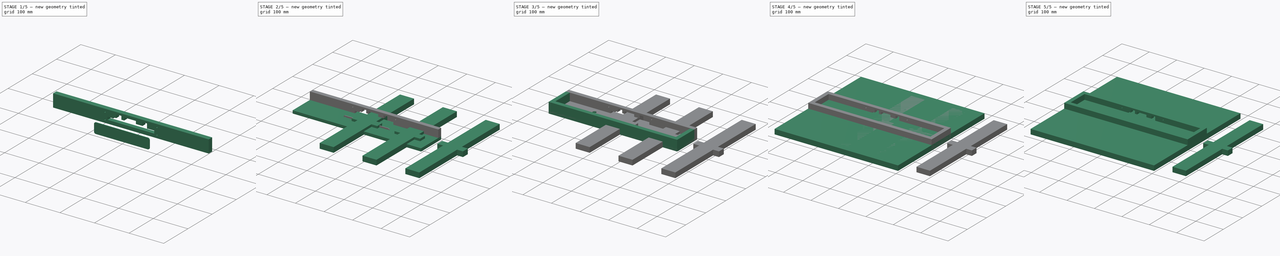
[diagram: build sequence overview — one tinted view per stage of 5, left to right]
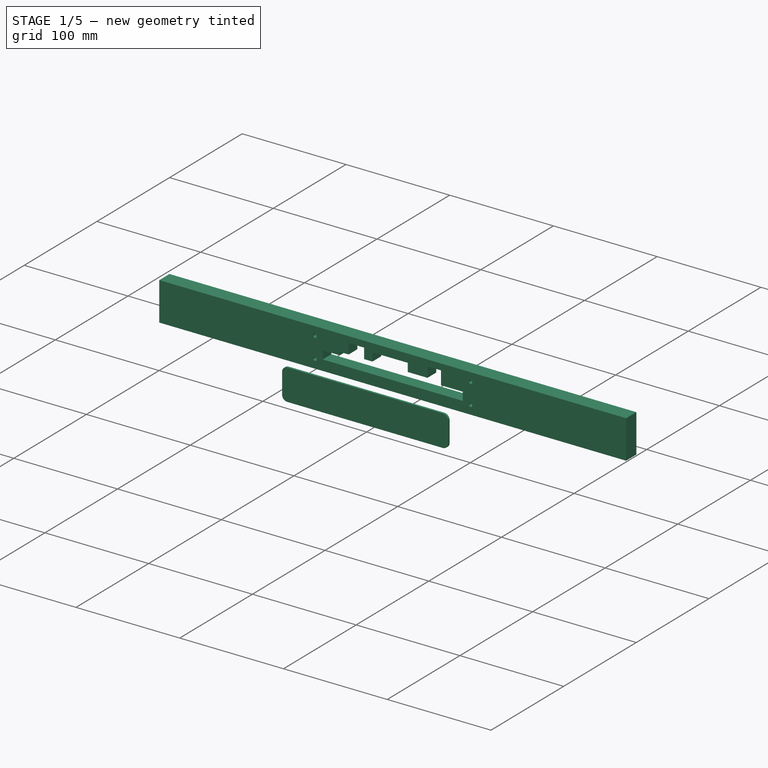
[diagram: stage 1 of 5 — iso view after this stage's code; geometry added in this stage tinted green]
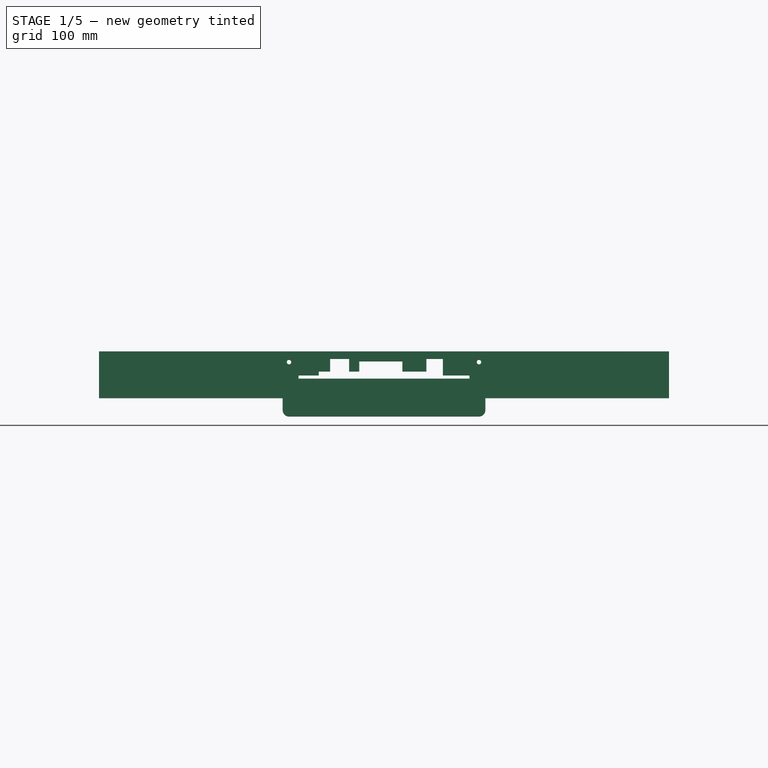
[diagram: stage 1 of 5 — front view after this stage's code; geometry added in this stage tinted green]
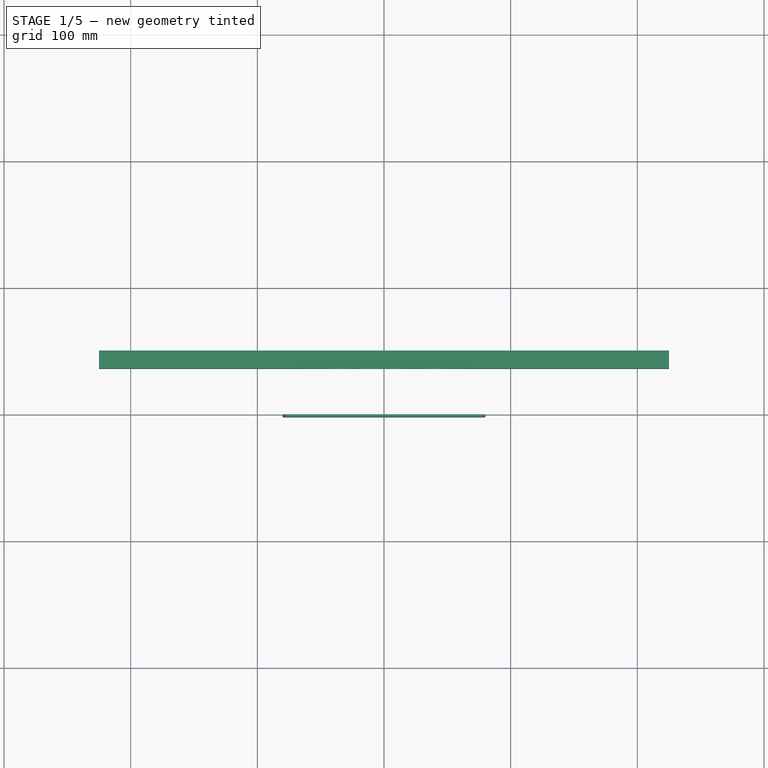
[diagram: stage 1 of 5 — top view after this stage's code; geometry added in this stage tinted green]
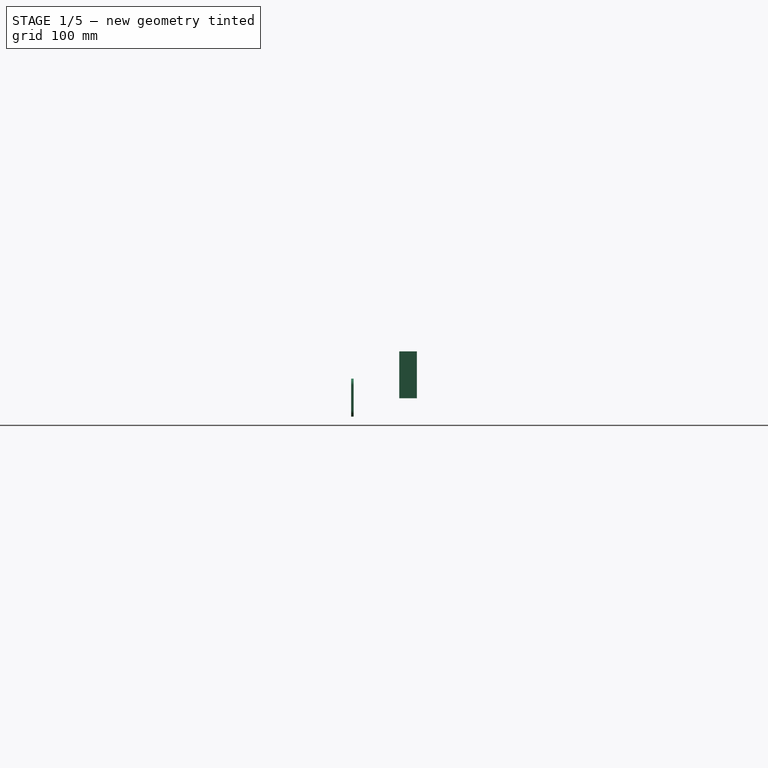
[diagram: stage 1 of 5 — right view after this stage's code; geometry added in this stage tinted green]
FCSTD DOCUMENT  (FreeCAD 1.1R20260414 (Git shallow))
Label: LittleDancePad
License: All rights reserved
LicenseURL: http://en.wikipedia.org/wiki/All_rights_reserved
objects: App::Link×122, App::Point×28, Sketcher::SketchObject×21, Part::Feature×16, PartDesign::Pad×15, PartDesign::Body×15, App::Part×13, PartDesign::Pocket×11, PartDesign::SubShapeBinder×6, PartDesign::LinearPattern×4, Part::Part2DObjectPython×2, Spreadsheet::Sheet×1, PartDesign::MultiTransform×1, PartDesign::CoordinateSystem×1, PartDesign::Fillet×1
note: 173 computed .brp shape members not serialized (recipe doc carries the construction recipe); baked Part::Feature solids carry a one-line shape summary decoded from their .brp

FEATURE [PartDesign::Body] Body007
  AllowCompound = true
  Group = -> [Sketch007,Pad007]
  Origin = -> Origin016
  Tip = -> Pad007
FEATURE [Sketcher::SketchObject] Sketch008
  ArcFitTolerance = 0
  AttachmentSupport = -> [XY_Plane009]
  ExternalTypes = [0]
  FullyConstrained = true
  MakeInternals = false
  MapMode = 5
  _ExternalGeoVersion = 0
  expr: Constraints[11] = <<Variables>>.OveralPadLength / 2
  expr: Constraints[8] = <<Variables>>.OveralPadLength
  sketch-geometry (4):
    g0: LineSegment StartX=-225 StartY=50 StartZ=0 EndX=225 EndY=50 EndZ=0
    g1: LineSegment StartX=225 StartY=50 StartZ=0 EndX=225 EndY=36 EndZ=0
    g2: LineSegment StartX=225 StartY=36 StartZ=0 EndX=-225 EndY=36 EndZ=0
    g3: LineSegment StartX=-225 StartY=36 StartZ=0 EndX=-225 EndY=50 EndZ=0
  constraints (12):
    c: Coincident(g0,g1)
    c: Coincident(g1,g2)
    c: Coincident(g2,g3)
    c: Coincident(g3,g0)
    c: Horizontal(g0)
    c: Horizontal(g2)
    c: Vertical(g1)
    c: Vertical(g3)
    c: DistanceX(g0,g0) = 450
    c: DistanceY(g1,g1) = 14
    c: DistanceY(g-1,g0) = 50
    c: DistanceX(g-1,g0) = 225
FEATURE [PartDesign::Pad] Pad008
  Direction = (0,0,1)
  Length = 37
  Length2 = 100
  Profile = -> Sketch008
  SideType = 0
  Suppressed = false
  Type = 0
  Type2 = 0
FEATURE [PartDesign::Body] Body013
  AllowCompound = true
  Group = -> [Sketch014,Pad013,LinearPattern003]
  Origin = -> Origin023
  Placement = pos=(-150,0,0) rot=(0,0,1;0rad)
  Tip = -> LinearPattern003
FEATURE [App::Part] Part006  label="Bases_Part"
  Group = -> [Body012,Link012,Link013,Link014,Body013]
  Origin = -> Origin021
  Placement = pos=(0,0,-18) rot=(0,0,1;0rad)
FEATURE [App::Link] C6_C_0805_2012Metric_626D0741_ln_  label="C6_C_0805_2012Metric_626D0741_ln__C_0805_2012Metric_626D0730"
  LinkPlacement = pos=(152.273,-99.822,0) rot=(0,0,1;0rad)
  LinkedObject = -> Shape014
  Placement = pos=(152.273,-99.822,0) rot=(0,0,1;0rad)
FEATURE [App::Link] C6_C_0805_2012Metric_626D0741_ln_001  label="C6_C_0805_2012Metric_626D0741_ln_001_C_0805_2012Metric_626D071F"
  LinkPlacement = pos=(156.083,-95.377,0) rot=(0,0,1;1.5708rad)
  LinkedObject = -> Shape014
  Placement = pos=(156.083,-95.377,0) rot=(0,0,1;1.5708rad)
FEATURE [App::Link] C6_C_0805_2012Metric_626D0741_ln_002  label="C6_C_0805_2012Metric_626D0741_ln_002_C_0805_2012Metric_626D070E"
  LinkPlacement = pos=(153.289,-80.01,0) rot=(0,0,-1;1.5708rad)
  LinkedObject = -> Shape014
  Placement = pos=(153.289,-80.01,0) rot=(0,0,-1;1.5708rad)
FEATURE [App::Link] C6_C_0805_2012Metric_626D0741_ln_003  label="C6_C_0805_2012Metric_626D0741_ln_003_C_0805_2012Metric_626D06FD"
  LinkPlacement = pos=(153.289,-75.057,0) rot=(0,0,-1;1.5708rad)
  LinkedObject = -> Shape014
  Placement = pos=(153.289,-75.057,0) rot=(0,0,-1;1.5708rad)
FEATURE [App::Link] C6_C_0805_2012Metric_626D0741_ln_004  label="C6_C_0805_2012Metric_626D0741_ln_004_C_0805_2012Metric_626D06EC"
  LinkPlacement = pos=(154.813,-85.217,0) rot=(0,0,1;0rad)
  LinkedObject = -> Shape014
  Placement = pos=(154.813,-85.217,0) rot=(0,0,1;0rad)
FEATURE [App::Link] D22_D_SOT_23_626D0966_ln_  label="D22_D_SOT_23_626D0966_ln__D_SOT_23_626D094C"
  LinkPlacement = pos=(116.713,-110.236,0) rot=(0,0,-1;1.5708rad)
  LinkedObject = -> Shape011
  Placement = pos=(116.713,-110.236,0) rot=(0,0,-1;1.5708rad)
FEATURE [App::Link] D22_D_SOT_23_626D0966_ln_001  label="D22_D_SOT_23_626D0966_ln_001_D_SOT_23_626D0932"
  LinkPlacement = pos=(110.363,-109.284,0) rot=(0,0,-1;1.5708rad)
  LinkedObject = -> Shape011
  Placement = pos=(110.363,-109.284,0) rot=(0,0,-1;1.5708rad)
FEATURE [App::Link] D22_D_SOT_23_626D0966_ln_002  label="D22_D_SOT_23_626D0966_ln_002_D_SOT_23_626D0918"
  LinkPlacement = pos=(197.929,-97.0915,0) rot=(0,0,-1;1.5708rad)
  LinkedObject = -> Shape011
  Placement = pos=(197.929,-97.0915,0) rot=(0,0,-1;1.5708rad)
FEATURE [App::Link] D22_D_SOT_23_626D0966_ln_003  label="D22_D_SOT_23_626D0966_ln_003_D_SOT_23_626D08FE"
  LinkPlacement = pos=(192.659,-93.091,0) rot=(0,0,-1;1.5708rad)
  LinkedObject = -> Shape011
  Placement = pos=(192.659,-93.091,0) rot=(0,0,-1;1.5708rad)
FEATURE [App::Link] D22_D_SOT_23_626D0966_ln_004  label="D22_D_SOT_23_626D0966_ln_004_D_SOT_23_626D08E4"
  LinkPlacement = pos=(192.659,-98.171,0) rot=(0,0,-1;1.5708rad)
  LinkedObject = -> Shape011
  Placement = pos=(192.659,-98.171,0) rot=(0,0,-1;1.5708rad)
FEATURE [App::Link] D22_D_SOT_23_626D0966_ln_005  label="D22_D_SOT_23_626D0966_ln_005_D_SOT_23_626D08CA"
  LinkPlacement = pos=(116.713,-105.156,0) rot=(0,0,-1;1.5708rad)
  LinkedObject = -> Shape011
  Placement = pos=(116.713,-105.156,0) rot=(0,0,-1;1.5708rad)
FEATURE [App::Link] D22_D_SOT_23_626D0966_ln_006  label="D22_D_SOT_23_626D0966_ln_006_D_SOT_23_626D08B0"
  LinkPlacement = pos=(110.363,-104.204,0) rot=(0,0,-1;1.5708rad)
  LinkedObject = -> Shape011
  Placement = pos=(110.363,-104.204,0) rot=(0,0,-1;1.5708rad)
FEATURE [App::Link] D22_D_SOT_23_626D0966_ln_007  label="D22_D_SOT_23_626D0966_ln_007_D_SOT_23_626D0896"
  LinkPlacement = pos=(116.65,-93.091,0) rot=(0,0,-1;1.5708rad)
  LinkedObject = -> Shape011
  Placement = pos=(116.65,-93.091,0) rot=(0,0,-1;1.5708rad)
FEATURE [App::Link] D22_D_SOT_23_626D0966_ln_008  label="D22_D_SOT_23_626D0966_ln_008_D_SOT_23_626D087C"
  LinkPlacement = pos=(197.993,-109.156,0) rot=(0,0,-1;1.5708rad)
  LinkedObject = -> Shape011
  Placement = pos=(197.993,-109.156,0) rot=(0,0,-1;1.5708rad)
FEATURE [App::Link] D22_D_SOT_23_626D0966_ln_009  label="D22_D_SOT_23_626D0966_ln_009_D_SOT_23_626D0862"
  LinkPlacement = pos=(192.659,-105.029,0) rot=(0,0,-1;1.5708rad)
  LinkedObject = -> Shape011
  Placement = pos=(192.659,-105.029,0) rot=(0,0,-1;1.5708rad)
FEATURE [App::Link] D22_D_SOT_23_626D0966_ln_010  label="D22_D_SOT_23_626D0966_ln_010_D_SOT_23_626D0848"
  LinkPlacement = pos=(192.659,-110.236,0) rot=(0,0,-1;1.5708rad)
  LinkedObject = -> Shape011
  Placement = pos=(192.659,-110.236,0) rot=(0,0,-1;1.5708rad)
FEATURE [App::Link] D22_D_SOT_23_626D0966_ln_011  label="D22_D_SOT_23_626D0966_ln_011_D_SOT_23_626D082E"
  LinkPlacement = pos=(197.929,-92.0115,0) rot=(0,0,-1;1.5708rad)
  LinkedObject = -> Shape011
  Placement = pos=(197.929,-92.0115,0) rot=(0,0,-1;1.5708rad)
FEATURE [App::Link] D22_D_SOT_23_626D0966_ln_012  label="D22_D_SOT_23_626D0966_ln_012_D_SOT_23_626D0814"
  LinkPlacement = pos=(116.65,-98.171,0) rot=(0,0,-1;1.5708rad)
  LinkedObject = -> Shape011
  Placement = pos=(116.65,-98.171,0) rot=(0,0,-1;1.5708rad)
FEATURE [App::Link] D22_D_SOT_23_626D0966_ln_013  label="D22_D_SOT_23_626D0966_ln_013_D_SOT_23_626D07FA"
  LinkPlacement = pos=(110.363,-92.075,0) rot=(0,0,-1;1.5708rad)
  LinkedObject = -> Shape011
  Placement = pos=(110.363,-92.075,0) rot=(0,0,-1;1.5708rad)
FEATURE [App::Link] D22_D_SOT_23_626D0966_ln_014  label="D22_D_SOT_23_626D0966_ln_014_D_SOT_23_626D07E0"
  LinkPlacement = pos=(197.929,-104.076,0) rot=(0,0,-1;1.5708rad)
  LinkedObject = -> Shape011
  Placement = pos=(197.929,-104.076,0) rot=(0,0,-1;1.5708rad)
FEATURE [App::Link] D22_D_SOT_23_626D0966_ln_015  label="D22_D_SOT_23_626D0966_ln_015_D_SOT_23_626D078D"
  LinkPlacement = pos=(123.571,-73.406,0) rot=(0,0,1;3.14159rad)
  LinkedObject = -> Shape011
  Placement = pos=(123.571,-73.406,0) rot=(0,0,1;3.14159rad)
FEATURE [App::Link] D22_D_SOT_23_626D0966_ln_016  label="D22_D_SOT_23_626D0966_ln_016_D_SOT_23_626D0773"
  LinkPlacement = pos=(119.253,-75.692,0) rot=(0,0,1;0rad)
  LinkedObject = -> Shape011
  Placement = pos=(119.253,-75.692,0) rot=(0,0,1;0rad)
FEATURE [App::Link] D6_LED_0603_1608Metric_Castellated_626D07C6_ln_  label="D6_LED_0603_1608Metric_Castellated_626D07C6_ln__LED_0603_1608Metric_Castellated_626D07B3"
  LinkPlacement = pos=(109.093,-66.802,-1.6) rot=(1,0,0;3.14159rad)
  LinkedObject = -> Shape012
  Placement = pos=(109.093,-66.802,-1.6) rot=(1,0,0;3.14159rad)
FEATURE [App::Link] D6_LED_0603_1608Metric_Castellated_626D07C6_ln_001  label="D6_LED_0603_1608Metric_Castellated_626D07C6_ln_001_LED_0603_1608Metric_Castellated_626E04D2"
  LinkPlacement = pos=(180.848,-66.802,-1.6) rot=(-0.707107,0.707107,0;3.14159rad)
  LinkedObject = -> Shape012
  Placement = pos=(180.848,-66.802,-1.6) rot=(-0.707107,0.707107,0;3.14159rad)
FEATURE [App::Link] J10_PinHeader_2x04_P254mm_Horizontal_626D0C19_ln_  label="J10_PinHeader_2x04_P254mm_Horizontal_626D0C19_ln__PinHeader_2x04_P254mm_Horizontal_626D0BC0"
  LinkPlacement = pos=(209.423,-85.852,-1.6) rot=(1,0,0;3.14159rad)
  LinkedObject = -> Shape008
  Placement = pos=(209.423,-85.852,-1.6) rot=(1,0,0;3.14159rad)
FEATURE [App::Link] J10_PinHeader_2x04_P254mm_Horizontal_626D0C19_ln_001  label="J10_PinHeader_2x04_P254mm_Horizontal_626D0C19_ln_001_PinHeader_2x04_P254mm_Horizontal_626D0B67"
  LinkPlacement = pos=(98.933,-91.567,-1.6) rot=(0,1,0;3.14159rad)
  LinkedObject = -> Shape008
  Placement = pos=(98.933,-91.567,-1.6) rot=(0,1,0;3.14159rad)
FEATURE [App::Link] J10_PinHeader_2x04_P254mm_Horizontal_626D0C19_ln_002  label="J10_PinHeader_2x04_P254mm_Horizontal_626D0C19_ln_002_PinHeader_2x04_P254mm_Horizontal_626D0B0E"
  LinkPlacement = pos=(209.423,-99.187,-1.6) rot=(1,0,0;3.14159rad)
  LinkedObject = -> Shape008
  Placement = pos=(209.423,-99.187,-1.6) rot=(1,0,0;3.14159rad)
FEATURE [App::Link] J10_PinHeader_2x04_P254mm_Horizontal_626D0C19_ln_003  label="J10_PinHeader_2x04_P254mm_Horizontal_626D0C19_ln_003_PinHeader_2x04_P254mm_Horizontal_626D0AB5"
  LinkPlacement = pos=(98.933,-103.632,-1.6) rot=(0,1,0;3.14159rad)
  LinkedObject = -> Shape008
  Placement = pos=(98.933,-103.632,-1.6) rot=(0,1,0;3.14159rad)
FEATURE [App::Link] J10_PinHeader_2x04_P254mm_Horizontal_626D0C19_ln_004  label="J10_PinHeader_2x04_P254mm_Horizontal_626D0C19_ln_004_PinHeader_2x04_P254mm_Horizontal_626D0A5C"
  LinkPlacement = pos=(209.423,-111.252,-1.6) rot=(1,0,0;3.14159rad)
  LinkedObject = -> Shape008
  Placement = pos=(209.423,-111.252,-1.6) rot=(1,0,0;3.14159rad)
FEATURE [PartDesign::CoordinateSystem] Local_CS_1623
  AttacherType = Attacher::AttachEngine3D
FEATURE [Sketcher::SketchObject] PCB_Sketch_1623
  ArcFitTolerance = 0
  ExternalTypes = [0]
  FullyConstrained = false
  MakeInternals = false
  _ExternalGeoVersion = 0
  sketch-geometry (4):
    g0: LineSegment StartX=91.948 StartY=-123.952 StartZ=0 EndX=91.948 EndY=-56.007 EndZ=0
    g1: LineSegment StartX=216.408 StartY=-123.952 StartZ=0 EndX=91.948 EndY=-123.952 EndZ=0
    g2: LineSegment StartX=216.408 StartY=-56.007 StartZ=0 EndX=216.408 EndY=-123.952 EndZ=0
    g3: LineSegment StartX=91.948 StartY=-56.007 StartZ=0 EndX=216.408 EndY=-56.007 EndZ=0
  constraints (4):
    c: Coincident(g0,g1)
    c: Coincident(g0,g3)
    c: Coincident(g1,g2)
    c: Coincident(g2,g3)
FEATURE [Part::Feature] Pcb_1623
  shape: bbox 124.5 x 67.95 x 1.6 mm, 144 faces (baked)
FEATURE [App::Part] Board_Geoms_1623
  Group = -> [Local_CS_1623,Pcb_1623,PCB_Sketch_1623]
  Origin = -> Origin024
FEATURE [App::Link] Q9_SOT_223_626D0D21_ln_  label="Q9_SOT_223_626D0D21_ln__SOT_223_626D0D0B"
  LinkPlacement = pos=(199.898,-74.422,-1.6) rot=(1,0,0;3.14159rad)
  LinkedObject = -> Shape005
  Placement = pos=(199.898,-74.422,-1.6) rot=(1,0,0;3.14159rad)
FEATURE [App::Link] Q9_SOT_223_626D0D21_ln_001  label="Q9_SOT_223_626D0D21_ln_001_SOT_223_626D0CF5"
  LinkPlacement = pos=(199.898,-109.347,-1.6) rot=(1,0,0;3.14159rad)
  LinkedObject = -> Shape005
  Placement = pos=(199.898,-109.347,-1.6) rot=(1,0,0;3.14159rad)
FEATURE [App::Link] Q9_SOT_223_626D0D21_ln_002  label="Q9_SOT_223_626D0D21_ln_002_SOT_223_626D0CDF"
  LinkPlacement = pos=(108.458,-109.347,-1.6) rot=(0,1,0;3.14159rad)
  LinkedObject = -> Shape005
  Placement = pos=(108.458,-109.347,-1.6) rot=(0,1,0;3.14159rad)
FEATURE [App::Link] Q9_SOT_223_626D0D21_ln_003  label="Q9_SOT_223_626D0D21_ln_003_SOT_223_626D0CC9"
  LinkPlacement = pos=(108.458,-86.487,-1.6) rot=(0,1,0;3.14159rad)
  LinkedObject = -> Shape005
  Placement = pos=(108.458,-86.487,-1.6) rot=(0,1,0;3.14159rad)
FEATURE [App::Link] Q9_SOT_223_626D0D21_ln_004  label="Q9_SOT_223_626D0D21_ln_004_SOT_223_626D0CB3"
  LinkPlacement = pos=(108.458,-75.057,-1.6) rot=(0,1,0;3.14159rad)
  LinkedObject = -> Shape005
  Placement = pos=(108.458,-75.057,-1.6) rot=(0,1,0;3.14159rad)
FEATURE [App::Link] Q9_SOT_223_626D0D21_ln_005  label="Q9_SOT_223_626D0D21_ln_005_SOT_223_626D0C9D"
  LinkPlacement = pos=(108.458,-97.917,-1.6) rot=(0,1,0;3.14159rad)
  LinkedObject = -> Shape005
  Placement = pos=(108.458,-97.917,-1.6) rot=(0,1,0;3.14159rad)
FEATURE [App::Link] Q9_SOT_223_626D0D21_ln_006  label="Q9_SOT_223_626D0D21_ln_006_SOT_223_626D0C87"
  LinkPlacement = pos=(199.898,-97.917,-1.6) rot=(1,0,0;3.14159rad)
  LinkedObject = -> Shape005
  Placement = pos=(199.898,-97.917,-1.6) rot=(1,0,0;3.14159rad)
FEATURE [App::Link] R65_R_0805_2012Metric_626D1172_ln_  label="R65_R_0805_2012Metric_626D1172_ln__R_0805_2012Metric_626D1161"
  LinkPlacement = pos=(197.739,-79.502,-1.6) rot=(0,1,0;3.14159rad)
  LinkedObject = -> Shape004
  Placement = pos=(197.739,-79.502,-1.6) rot=(0,1,0;3.14159rad)
FEATURE [App::Link] R65_R_0805_2012Metric_626D1172_ln_001  label="R65_R_0805_2012Metric_626D1172_ln_001_R_0805_2012Metric_626D1150"
  LinkPlacement = pos=(197.739,-114.49,-1.6) rot=(0,1,0;3.14159rad)
  LinkedObject = -> Shape004
  Placement = pos=(197.739,-114.49,-1.6) rot=(0,1,0;3.14159rad)
FEATURE [App::Link] R65_R_0805_2012Metric_626D1172_ln_002  label="R65_R_0805_2012Metric_626D1172_ln_002_R_0805_2012Metric_626D113F"
  LinkPlacement = pos=(191.707,-82.2325,-1.6) rot=(0,1,0;3.14159rad)
  LinkedObject = -> Shape004
  Placement = pos=(191.707,-82.2325,-1.6) rot=(0,1,0;3.14159rad)
FEATURE [App::Link] R65_R_0805_2012Metric_626D1172_ln_003  label="R65_R_0805_2012Metric_626D1172_ln_003_R_0805_2012Metric_626D112E"
  LinkPlacement = pos=(191.516,-71.1835,-1.6) rot=(0,1,0;3.14159rad)
  LinkedObject = -> Shape004
  Placement = pos=(191.516,-71.1835,-1.6) rot=(0,1,0;3.14159rad)
FEATURE [App::Link] R65_R_0805_2012Metric_626D1172_ln_004  label="R65_R_0805_2012Metric_626D1172_ln_004_R_0805_2012Metric_626D111D"
  LinkPlacement = pos=(191.707,-105.855,-1.6) rot=(0,1,0;3.14159rad)
  LinkedObject = -> Shape004
  Placement = pos=(191.707,-105.855,-1.6) rot=(0,1,0;3.14159rad)
FEATURE [App::Link] R65_R_0805_2012Metric_626D1172_ln_005  label="R65_R_0805_2012Metric_626D1172_ln_005_R_0805_2012Metric_626D110C"
  LinkPlacement = pos=(184.087,-82.2325,-1.6) rot=(1,0,0;3.14159rad)
  LinkedObject = -> Shape004
  Placement = pos=(184.087,-82.2325,-1.6) rot=(1,0,0;3.14159rad)
FEATURE [App::Link] R65_R_0805_2012Metric_626D1172_ln_006  label="R65_R_0805_2012Metric_626D1172_ln_006_R_0805_2012Metric_626D10FB"
  LinkPlacement = pos=(184.023,-71.1835,-1.6) rot=(1,0,0;3.14159rad)
  LinkedObject = -> Shape004
  Placement = pos=(184.023,-71.1835,-1.6) rot=(1,0,0;3.14159rad)
FEATURE [App::Link] R65_R_0805_2012Metric_626D1172_ln_007  label="R65_R_0805_2012Metric_626D1172_ln_007_R_0805_2012Metric_626D10EA"
  LinkPlacement = pos=(184.023,-105.855,-1.6) rot=(1,0,0;3.14159rad)
  LinkedObject = -> Shape004
  Placement = pos=(184.023,-105.855,-1.6) rot=(1,0,0;3.14159rad)
FEATURE [App::Link] R65_R_0805_2012Metric_626D1172_ln_008  label="R65_R_0805_2012Metric_626D1172_ln_008_R_0805_2012Metric_626D10D9"
  LinkPlacement = pos=(110.998,-114.427,-1.6) rot=(1,0,0;3.14159rad)
  LinkedObject = -> Shape004
  Placement = pos=(110.998,-114.427,-1.6) rot=(1,0,0;3.14159rad)
FEATURE [App::Link] R65_R_0805_2012Metric_626D1172_ln_009  label="R65_R_0805_2012Metric_626D1172_ln_009_R_0805_2012Metric_inf"
  LinkPlacement = pos=(110.998,-91.567,-1.6) rot=(1,0,0;3.14159rad)
  LinkedObject = -> Shape004
  Placement = pos=(110.998,-91.567,-1.6) rot=(1,0,0;3.14159rad)
FEATURE [App::Link] R65_R_0805_2012Metric_626D1172_ln_010  label="R65_R_0805_2012Metric_626D1172_ln_010_R_0805_2012Metric_626D10B7"
  LinkPlacement = pos=(110.998,-80.137,-1.6) rot=(1,0,0;3.14159rad)
  LinkedObject = -> Shape004
  Placement = pos=(110.998,-80.137,-1.6) rot=(1,0,0;3.14159rad)
FEATURE [App::Link] R65_R_0805_2012Metric_626D1172_ln_011  label="R65_R_0805_2012Metric_626D1172_ln_011_R_0805_2012Metric_627AC4CF"
  LinkPlacement = pos=(117.094,-114.364,-1.6) rot=(1,0,0;3.14159rad)
  LinkedObject = -> Shape004
  Placement = pos=(117.094,-114.364,-1.6) rot=(1,0,0;3.14159rad)
FEATURE [App::Link] R65_R_0805_2012Metric_626D1172_ln_012  label="R65_R_0805_2012Metric_626D1172_ln_012_R_0805_2012Metric_627AC49F"
  LinkPlacement = pos=(117.094,-91.567,-1.6) rot=(1,0,0;3.14159rad)
  LinkedObject = -> Shape004
  Placement = pos=(117.094,-91.567,-1.6) rot=(1,0,0;3.14159rad)
FEATURE [App::Link] R65_R_0805_2012Metric_626D1172_ln_013  label="R65_R_0805_2012Metric_626D1172_ln_013_R_0805_2012Metric_627AC46F"
  LinkPlacement = pos=(117.094,-80.137,-1.6) rot=(1,0,0;3.14159rad)
  LinkedObject = -> Shape004
  Placement = pos=(117.094,-80.137,-1.6) rot=(1,0,0;3.14159rad)
FEATURE [App::Link] R65_R_0805_2012Metric_626D1172_ln_014  label="R65_R_0805_2012Metric_626D1172_ln_014_R_0805_2012Metric_627AC43F"
  LinkPlacement = pos=(124.904,-114.364,-1.6) rot=(0,1,0;3.14159rad)
  LinkedObject = -> Shape004
  Placement = pos=(124.904,-114.364,-1.6) rot=(0,1,0;3.14159rad)
FEATURE [App::Link] R65_R_0805_2012Metric_626D1172_ln_015  label="R65_R_0805_2012Metric_626D1172_ln_015_R_0805_2012Metric_627AC40F"
  LinkPlacement = pos=(124.904,-91.567,-1.6) rot=(0,1,0;3.14159rad)
  LinkedObject = -> Shape004
  Placement = pos=(124.904,-91.567,-1.6) rot=(0,1,0;3.14159rad)
FEATURE [App::Link] R65_R_0805_2012Metric_626D1172_ln_016  label="R65_R_0805_2012Metric_626D1172_ln_016_R_0805_2012Metric_627AC3DF"
  LinkPlacement = pos=(124.904,-80.137,-1.6) rot=(0,1,0;3.14159rad)
  LinkedObject = -> Shape004
  Placement = pos=(124.904,-80.137,-1.6) rot=(0,1,0;3.14159rad)
FEATURE [App::Link] R65_R_0805_2012Metric_626D1172_ln_017  label="R65_R_0805_2012Metric_626D1172_ln_017_R_0805_2012Metric_626D1040"
  LinkPlacement = pos=(110.998,-102.997,-1.6) rot=(1,0,0;3.14159rad)
  LinkedObject = -> Shape004
  Placement = pos=(110.998,-102.997,-1.6) rot=(1,0,0;3.14159rad)
FEATURE [App::Link] R65_R_0805_2012Metric_626D1172_ln_018  label="R65_R_0805_2012Metric_626D1172_ln_018_R_0805_2012Metric_627AC3AF"
  LinkPlacement = pos=(117.094,-102.997,-1.6) rot=(1,0,0;3.14159rad)
  LinkedObject = -> Shape004
  Placement = pos=(117.094,-102.997,-1.6) rot=(1,0,0;3.14159rad)
FEATURE [App::Link] R65_R_0805_2012Metric_626D1172_ln_019  label="R65_R_0805_2012Metric_626D1172_ln_019_R_0805_2012Metric_627AC37F"
  LinkPlacement = pos=(124.904,-102.997,-1.6) rot=(0,1,0;3.14159rad)
  LinkedObject = -> Shape004
  Placement = pos=(124.904,-102.997,-1.6) rot=(0,1,0;3.14159rad)
FEATURE [App::Link] R65_R_0805_2012Metric_626D1172_ln_020  label="R65_R_0805_2012Metric_626D1172_ln_020_R_0805_2012Metric_626D100D"
  LinkPlacement = pos=(197.739,-103.124,-1.6) rot=(0,1,0;3.14159rad)
  LinkedObject = -> Shape004
  Placement = pos=(197.739,-103.124,-1.6) rot=(0,1,0;3.14159rad)
FEATURE [App::Link] R65_R_0805_2012Metric_626D1172_ln_021  label="R65_R_0805_2012Metric_626D1172_ln_021_R_0805_2012Metric_626D0FFC"
  LinkPlacement = pos=(191.643,-94.488,-1.6) rot=(0,1,0;3.14159rad)
  LinkedObject = -> Shape004
  Placement = pos=(191.643,-94.488,-1.6) rot=(0,1,0;3.14159rad)
FEATURE [App::Link] R65_R_0805_2012Metric_626D1172_ln_022  label="R65_R_0805_2012Metric_626D1172_ln_022_R_0805_2012Metric_626D0FEB"
  LinkPlacement = pos=(184.087,-94.488,-1.6) rot=(1,0,0;3.14159rad)
  LinkedObject = -> Shape004
  Placement = pos=(184.087,-94.488,-1.6) rot=(1,0,0;3.14159rad)
FEATURE [App::Link] R65_R_0805_2012Metric_626D1172_ln_023  label="R65_R_0805_2012Metric_626D1172_ln_023_R_0805_2012Metric_626D0FDA"
  LinkPlacement = pos=(102.743,-97.0915,0) rot=(0,0,-1;1.5708rad)
  LinkedObject = -> Shape004
  Placement = pos=(102.743,-97.0915,0) rot=(0,0,-1;1.5708rad)
FEATURE [App::Link] R65_R_0805_2012Metric_626D1172_ln_024  label="R65_R_0805_2012Metric_626D1172_ln_024_R_0805_2012Metric_626D0FC9"
  LinkPlacement = pos=(106.299,-110.236,0) rot=(0,0,-1;1.5708rad)
  LinkedObject = -> Shape004
  Placement = pos=(106.299,-110.236,0) rot=(0,0,-1;1.5708rad)
FEATURE [App::Link] R65_R_0805_2012Metric_626D1172_ln_025  label="R65_R_0805_2012Metric_626D1172_ln_025_R_0805_2012Metric_626D0FB8"
  LinkPlacement = pos=(102.743,-109.22,0) rot=(0,0,-1;1.5708rad)
  LinkedObject = -> Shape004
  Placement = pos=(102.743,-109.22,0) rot=(0,0,-1;1.5708rad)
FEATURE [App::Link] R65_R_0805_2012Metric_626D1172_ln_026  label="R65_R_0805_2012Metric_626D1172_ln_026_R_0805_2012Metric_626D0FA7"
  LinkPlacement = pos=(176.403,-106.172,0) rot=(0,0,1;1.5708rad)
  LinkedObject = -> Shape004
  Placement = pos=(176.403,-106.172,0) rot=(0,0,1;1.5708rad)
FEATURE [App::Link] R65_R_0805_2012Metric_626D1172_ln_027  label="R65_R_0805_2012Metric_626D1172_ln_027_R_0805_2012Metric_626D0F96"
  LinkPlacement = pos=(166.243,-106.172,0) rot=(0,0,1;1.5708rad)
  LinkedObject = -> Shape004
  Placement = pos=(166.243,-106.172,0) rot=(0,0,1;1.5708rad)
FEATURE [App::Link] R65_R_0805_2012Metric_626D1172_ln_028  label="R65_R_0805_2012Metric_626D1172_ln_028_R_0805_2012Metric_626D0F85"
  LinkPlacement = pos=(158.623,-106.172,0) rot=(0,0,1;1.5708rad)
  LinkedObject = -> Shape004
  Placement = pos=(158.623,-106.172,0) rot=(0,0,1;1.5708rad)
FEATURE [App::Link] R65_R_0805_2012Metric_626D1172_ln_029  label="R65_R_0805_2012Metric_626D1172_ln_029_R_0805_2012Metric_626D0F74"
  LinkPlacement = pos=(206.185,-97.0915,0) rot=(0,0,-1;1.5708rad)
  LinkedObject = -> Shape004
  Placement = pos=(206.185,-97.0915,0) rot=(0,0,-1;1.5708rad)
FEATURE [App::Link] R65_R_0805_2012Metric_626D1172_ln_030  label="R65_R_0805_2012Metric_626D1172_ln_030_R_0805_2012Metric_626D884E"
  LinkPlacement = pos=(202.819,-93.091,0) rot=(0,0,-1;1.5708rad)
  LinkedObject = -> Shape004
  Placement = pos=(202.819,-93.091,0) rot=(0,0,-1;1.5708rad)
FEATURE [App::Link] R65_R_0805_2012Metric_626D1172_ln_031  label="R65_R_0805_2012Metric_626D1172_ln_031_R_0805_2012Metric_626D0F52"
  LinkPlacement = pos=(202.819,-98.171,0) rot=(0,0,-1;1.5708rad)
  LinkedObject = -> Shape004
  Placement = pos=(202.819,-98.171,0) rot=(0,0,-1;1.5708rad)
FEATURE [App::Link] R65_R_0805_2012Metric_626D1172_ln_032  label="R65_R_0805_2012Metric_626D1172_ln_032_R_0805_2012Metric_626D0F41"
  LinkPlacement = pos=(168.783,-106.172,0) rot=(0,0,1;1.5708rad)
  LinkedObject = -> Shape004
  Placement = pos=(168.783,-106.172,0) rot=(0,0,1;1.5708rad)
FEATURE [App::Link] R65_R_0805_2012Metric_626D1172_ln_033  label="R65_R_0805_2012Metric_626D1172_ln_033_R_0805_2012Metric_626D0F30"
  LinkPlacement = pos=(173.863,-106.172,0) rot=(0,0,1;1.5708rad)
  LinkedObject = -> Shape004
  Placement = pos=(173.863,-106.172,0) rot=(0,0,1;1.5708rad)
FEATURE [App::Link] R65_R_0805_2012Metric_626D1172_ln_034  label="R65_R_0805_2012Metric_626D1172_ln_034_R_0805_2012Metric_626D0F1F"
  LinkPlacement = pos=(138.303,-106.172,0) rot=(0,0,1;1.5708rad)
  LinkedObject = -> Shape004
  Placement = pos=(138.303,-106.172,0) rot=(0,0,1;1.5708rad)
FEATURE [App::Link] R65_R_0805_2012Metric_626D1172_ln_035  label="R65_R_0805_2012Metric_626D1172_ln_035_R_0805_2012Metric_626D0F0E"
  LinkPlacement = pos=(106.299,-105.156,0) rot=(0,0,-1;1.5708rad)
  LinkedObject = -> Shape004
  Placement = pos=(106.299,-105.156,0) rot=(0,0,-1;1.5708rad)
FEATURE [App::Link] R65_R_0805_2012Metric_626D1172_ln_036  label="R65_R_0805_2012Metric_626D1172_ln_036_R_0805_2012Metric_626D0EFD"
  LinkPlacement = pos=(102.743,-104.204,0) rot=(0,0,-1;1.5708rad)
  LinkedObject = -> Shape004
  Placement = pos=(102.743,-104.204,0) rot=(0,0,-1;1.5708rad)
FEATURE [App::Link] R65_R_0805_2012Metric_626D1172_ln_037  label="R65_R_0805_2012Metric_626D1172_ln_037_R_0805_2012Metric_626D0EEC"
  LinkPlacement = pos=(106.299,-93.091,0) rot=(0,0,-1;1.5708rad)
  LinkedObject = -> Shape004
  Placement = pos=(106.299,-93.091,0) rot=(0,0,-1;1.5708rad)
FEATURE [App::Link] R65_R_0805_2012Metric_626D1172_ln_038  label="R65_R_0805_2012Metric_626D1172_ln_038_R_0805_2012Metric_626D0EDB"
  LinkPlacement = pos=(163.703,-106.172,0) rot=(0,0,1;1.5708rad)
  LinkedObject = -> Shape004
  Placement = pos=(163.703,-106.172,0) rot=(0,0,1;1.5708rad)
FEATURE [App::Link] R65_R_0805_2012Metric_626D1172_ln_039  label="R65_R_0805_2012Metric_626D1172_ln_039_R_0805_2012Metric_626D0ECA"
  LinkPlacement = pos=(161.163,-106.172,0) rot=(0,0,1;1.5708rad)
  LinkedObject = -> Shape004
  Placement = pos=(161.163,-106.172,0) rot=(0,0,1;1.5708rad)
FEATURE [App::Link] R65_R_0805_2012Metric_626D1172_ln_040  label="R65_R_0805_2012Metric_626D1172_ln_040_R_0805_2012Metric_626D0EB9"
  LinkPlacement = pos=(171.323,-106.172,0) rot=(0,0,1;1.5708rad)
  LinkedObject = -> Shape004
  Placement = pos=(171.323,-106.172,0) rot=(0,0,1;1.5708rad)
FEATURE [App::Link] R65_R_0805_2012Metric_626D1172_ln_041  label="R65_R_0805_2012Metric_626D1172_ln_041_R_0805_2012Metric_6277731A"
  LinkPlacement = pos=(206.248,-109.156,0) rot=(0,0,-1;1.5708rad)
  LinkedObject = -> Shape004
  Placement = pos=(206.248,-109.156,0) rot=(0,0,-1;1.5708rad)
FEATURE [App::Link] R65_R_0805_2012Metric_626D1172_ln_042  label="R65_R_0805_2012Metric_626D1172_ln_042_R_0805_2012Metric_626D0E97"
  LinkPlacement = pos=(202.819,-105.156,0) rot=(0,0,-1;1.5708rad)
  LinkedObject = -> Shape004
  Placement = pos=(202.819,-105.156,0) rot=(0,0,-1;1.5708rad)
FEATURE [App::Link] R65_R_0805_2012Metric_626D1172_ln_043  label="R65_R_0805_2012Metric_626D1172_ln_043_R_0805_2012Metric_627CCA6E"
  LinkPlacement = pos=(202.819,-110.236,0) rot=(0,0,-1;1.5708rad)
  LinkedObject = -> Shape004
  Placement = pos=(202.819,-110.236,0) rot=(0,0,-1;1.5708rad)
FEATURE [App::Link] R65_R_0805_2012Metric_626D1172_ln_044  label="R65_R_0805_2012Metric_626D1172_ln_044_R_0805_2012Metric_626D0E75"
  LinkPlacement = pos=(143.383,-106.172,0) rot=(0,0,1;1.5708rad)
  LinkedObject = -> Shape004
  Placement = pos=(143.383,-106.172,0) rot=(0,0,1;1.5708rad)
FEATURE [App::Link] R65_R_0805_2012Metric_626D1172_ln_045  label="R65_R_0805_2012Metric_626D1172_ln_045_R_0805_2012Metric_626D0E64"
  LinkPlacement = pos=(145.923,-106.172,0) rot=(0,0,1;1.5708rad)
  LinkedObject = -> Shape004
  Placement = pos=(145.923,-106.172,0) rot=(0,0,1;1.5708rad)
FEATURE [App::Link] R65_R_0805_2012Metric_626D1172_ln_046  label="R65_R_0805_2012Metric_626D1172_ln_046_R_0805_2012Metric_626D0E53"
  LinkPlacement = pos=(140.843,-106.172,0) rot=(0,0,1;1.5708rad)
  LinkedObject = -> Shape004
  Placement = pos=(140.843,-106.172,0) rot=(0,0,1;1.5708rad)
FEATURE [App::Link] R65_R_0805_2012Metric_626D1172_ln_047  label="R65_R_0805_2012Metric_626D1172_ln_047_R_0805_2012Metric_626D0E42"
  LinkPlacement = pos=(206.184,-92.0115,0) rot=(0,0,-1;1.5708rad)
  LinkedObject = -> Shape004
  Placement = pos=(206.184,-92.0115,0) rot=(0,0,-1;1.5708rad)
FEATURE [App::Link] R65_R_0805_2012Metric_626D1172_ln_048  label="R65_R_0805_2012Metric_626D1172_ln_048_R_0805_2012Metric_626D0E31"
  LinkPlacement = pos=(106.299,-98.171,0) rot=(0,0,-1;1.5708rad)
  LinkedObject = -> Shape004
  Placement = pos=(106.299,-98.171,0) rot=(0,0,-1;1.5708rad)
FEATURE [App::Link] R65_R_0805_2012Metric_626D1172_ln_049  label="R65_R_0805_2012Metric_626D1172_ln_049_R_0805_2012Metric_626D0E20"
  LinkPlacement = pos=(102.743,-92.075,0) rot=(0,0,-1;1.5708rad)
  LinkedObject = -> Shape004
  Placement = pos=(102.743,-92.075,0) rot=(0,0,-1;1.5708rad)
FEATURE [App::Link] R65_R_0805_2012Metric_626D1172_ln_050  label="R65_R_0805_2012Metric_626D1172_ln_050_R_0805_2012Metric_626D5E98"
  LinkPlacement = pos=(206.248,-104.076,0) rot=(0,0,-1;1.5708rad)
  LinkedObject = -> Shape004
  Placement = pos=(206.248,-104.076,0) rot=(0,0,-1;1.5708rad)
FEATURE [App::Link] R65_R_0805_2012Metric_626D1172_ln_051  label="R65_R_0805_2012Metric_626D1172_ln_051_R_0805_2012Metric_626D0DFE"
  LinkPlacement = pos=(135.763,-106.172,0) rot=(0,0,1;1.5708rad)
  LinkedObject = -> Shape004
  Placement = pos=(135.763,-106.172,0) rot=(0,0,1;1.5708rad)
FEATURE [App::Link] R65_R_0805_2012Metric_626D1172_ln_052  label="R65_R_0805_2012Metric_626D1172_ln_052_R_0805_2012Metric_626D0DED"
  LinkPlacement = pos=(133.223,-106.172,0) rot=(0,0,1;1.5708rad)
  LinkedObject = -> Shape004
  Placement = pos=(133.223,-106.172,0) rot=(0,0,1;1.5708rad)
FEATURE [App::Link] R65_R_0805_2012Metric_626D1172_ln_053  label="R65_R_0805_2012Metric_626D1172_ln_053_R_0805_2012Metric_626D0DDC"
  LinkPlacement = pos=(130.683,-106.172,0) rot=(0,0,1;1.5708rad)
  LinkedObject = -> Shape004
  Placement = pos=(130.683,-106.172,0) rot=(0,0,1;1.5708rad)
FEATURE [App::Link] R65_R_0805_2012Metric_626D1172_ln_054  label="R65_R_0805_2012Metric_626D1172_ln_054_R_0805_2012Metric_626D0DCB"
  LinkPlacement = pos=(148.463,-106.172,0) rot=(0,0,1;1.5708rad)
  LinkedObject = -> Shape004
  Placement = pos=(148.463,-106.172,0) rot=(0,0,1;1.5708rad)
FEATURE [App::Link] R65_R_0805_2012Metric_626D1172_ln_055  label="R65_R_0805_2012Metric_626D1172_ln_055_R_0805_2012Metric_626D0DBA"
  LinkPlacement = pos=(130.048,-66.802,0) rot=(0,0,1;1.5708rad)
  LinkedObject = -> Shape004
  Placement = pos=(130.048,-66.802,0) rot=(0,0,1;1.5708rad)
FEATURE [App::Link] R65_R_0805_2012Metric_626D1172_ln_056  label="R65_R_0805_2012Metric_626D1172_ln_056_R_0805_2012Metric_626D0DA9"
  LinkPlacement = pos=(136.843,-76.1365,0) rot=(0,0,1;1.5708rad)
  LinkedObject = -> Shape004
  Placement = pos=(136.843,-76.1365,0) rot=(0,0,1;1.5708rad)
FEATURE [App::Link] R65_R_0805_2012Metric_626D1172_ln_057  label="R65_R_0805_2012Metric_626D1172_ln_057_R_0805_2012Metric_626D0D98"
  LinkPlacement = pos=(105.918,-66.802,0) rot=(0,0,1;1.5708rad)
  LinkedObject = -> Shape004
  Placement = pos=(105.918,-66.802,0) rot=(0,0,1;1.5708rad)
FEATURE [App::Link] R65_R_0805_2012Metric_626D1172_ln_058  label="R65_R_0805_2012Metric_626D1172_ln_058_R_0805_2012Metric_inf"
  LinkPlacement = pos=(177.673,-63.627,0) rot=(0,0,1;3.14159rad)
  LinkedObject = -> Shape004
  Placement = pos=(177.673,-63.627,0) rot=(0,0,1;3.14159rad)
FEATURE [App::Link] R65_R_0805_2012Metric_626D1172_ln_059  label="R65_R_0805_2012Metric_626D1172_ln_059_R_0805_2012Metric_626D0D76"
  LinkPlacement = pos=(151.003,-84.582,0) rot=(0,0,-1;1.5708rad)
  LinkedObject = -> Shape004
  Placement = pos=(151.003,-84.582,0) rot=(0,0,-1;1.5708rad)
FEATURE [App::Link] R65_R_0805_2012Metric_626D1172_ln_060  label="R65_R_0805_2012Metric_626D1172_ln_060_R_0805_2012Metric_626D0D65"
  LinkPlacement = pos=(149.479,-70.485,0) rot=(0,0,1;3.14159rad)
  LinkedObject = -> Shape004
  Placement = pos=(149.479,-70.485,0) rot=(0,0,1;3.14159rad)
FEATURE [App::Link] R65_R_0805_2012Metric_626D1172_ln_061  label="R65_R_0805_2012Metric_626D1172_ln_061_R_0805_2012Metric_626D0D54"
  LinkPlacement = pos=(120.269,-80.01,0) rot=(0,0,-1;1.5708rad)
  LinkedObject = -> Shape004
  Placement = pos=(120.269,-80.01,0) rot=(0,0,-1;1.5708rad)
FEATURE [App::Link] R65_R_0805_2012Metric_626D1172_ln_062  label="R65_R_0805_2012Metric_626D1172_ln_062_R_0805_2012Metric_626D0D43"
  LinkPlacement = pos=(122.555,-80.01,0) rot=(0,0,-1;1.5708rad)
  LinkedObject = -> Shape004
  Placement = pos=(122.555,-80.01,0) rot=(0,0,-1;1.5708rad)
FEATURE [App::Link] R65_R_0805_2012Metric_626D1172_ln_063  label="R65_R_0805_2012Metric_626D1172_ln_063_R_0805_2012Metric_626D0D32"
  LinkPlacement = pos=(119.253,-72.517,0) rot=(0,0,1;0rad)
  LinkedObject = -> Shape004
  Placement = pos=(119.253,-72.517,0) rot=(0,0,1;0rad)
FEATURE [Part::Feature] Shape  label="Y1_Crystal_HC49-U_Vertical_626D12A7"
  Placement = pos=(157.734,-75.057,0) rot=(0,0,-1;1.5708rad)
  shape: bbox 4.65 x 10.9 x 16 mm, 26 faces (baked)
FEATURE [Part::Feature] Shape001  label="U10_SMDIP_4_W953mm_626D1290"
  Placement = pos=(187.833,-86.5505,-1.6) rot=(1,0,0;3.14159rad)
  shape: bbox 9.32 x 4.93 x 3.68 mm, 84 faces (baked)
FEATURE [Part::Feature] Shape002  label="U3_SOIC_16_39x99mm_P127mm_626D11E8"
  Placement = pos=(170.561,-95.25,0) rot=(0,0,1;1.5708rad)
  shape: bbox 9.9 x 6 x 1.75 mm, 276 faces (baked)
FEATURE [Part::Feature] Shape003  label="U1_DIP-40_W15.24mm_626E0E3D"
  Placement = pos=(130.683,-87.757,-1.6) rot=(-0.707107,0.707107,0;3.14159rad)
  shape: bbox 50.8 x 15.49 x 6.98 mm, 692 faces (baked)
FEATURE [Part::Feature] Shape004  label="R65_R_0805_2012Metric_626D1172"
  Placement = pos=(197.739,-90.9955,-1.6) rot=(0,1,0;3.14159rad)
  shape: bbox 2 x 1.2 x 0.45 mm, 26 faces (baked)
FEATURE [Part::Feature] Shape005  label="Q9_SOT_223_626D0D21"
  Placement = pos=(199.898,-85.852,-1.6) rot=(1,0,0;3.14159rad)
  shape: bbox 7 x 6.5 x 1.7 mm, 78 faces (baked)
FEATURE [Part::Feature] Shape006  label="L1_L_2816_7142Metric_626D0C5E"
  Placement = pos=(151.638,-94.107,0) rot=(0,0,-1;1.5708rad)
  shape: bbox 4.2 x 7.1 x 4 mm, 28 faces (baked)
FEATURE [Part::Feature] Shape007  label="J29_DSUB-9_Female_Horizontal_P2.77x2.84mm_EdgePinOffset7.70mm_Housed_
MountingHolesOffset9.12mm_626D0C4D"
  Placement = pos=(145.923,-66.802,0) rot=(0,0,1;3.14159rad)
  shape: bbox 30.96 x 18.74 x 17.98 mm, 179 faces (baked)
FEATURE [Part::Feature] Shape008  label="J10_PinHeader_2x04_P254mm_Horizontal_626D0C19"
  Placement = pos=(98.933,-78.232,-1.6) rot=(0,1,0;3.14159rad)
  shape: bbox 12.9 x 10.16 x 8.08 mm, 196 faces (baked)
FEATURE [Part::Feature] Shape009  label="J4_PinHeader_1x03_P254mm_Vertical_626E050C"
  Placement = pos=(163.703,-74.168,-1.6) rot=(-0.707107,0.707107,0;3.14159rad)
  shape: bbox 7.62 x 2.54 x 11.54 mm, 76 faces (baked)
FEATURE [Part::Feature] Shape010  label="J2_IDC_Header_2x03_P254mm_Vertical_626D09CF"
  Placement = pos=(142.748,-76.962,-1.6) rot=(-0.707107,0.707107,0;3.14159rad)
  shape: bbox 15.28 x 9.1 x 12.1 mm, 150 faces (baked)
FEATURE [Part::Feature] Shape011  label="D22_D_SOT_23_626D0966"
  Placement = pos=(110.363,-97.0915,0) rot=(0,0,-1;1.5708rad)
  shape: bbox 3 x 2.5 x 1.2 mm, 76 faces (baked)
FEATURE [Part::Feature] Shape012  label="D6_LED_0603_1608Metric_Castellated_626D07C6"
  Placement = pos=(133.223,-66.802,-1.6) rot=(1,0,0;3.14159rad)
  shape: bbox 1.6 x 0.8 x 1.1 mm, 38 faces (baked)
FEATURE [Part::Feature] Shape013  label="D1_D_SMA_626D0759"
  Placement = pos=(130.048,-80.137,0) rot=(0,0,1;3.14159rad)
  shape: bbox 5 x 2.7 x 2.22 mm, 41 faces (baked)
FEATURE [Part::Feature] Shape014  label="C6_C_0805_2012Metric_626D0741"
  Placement = pos=(137.795,-79.6925,0) rot=(0,0,1;0rad)
  shape: bbox 2 x 1.25 x 1.25 mm, 28 faces (baked)
FEATURE [App::Part] Top_1623
  Group = -> [Shape,Shape002,R65_R_0805_2012Metric_626D1172_ln_023,R65_R_0805_2012Metric_626D1172_ln_024,R65_R_0805_2012Metric_626D1172_ln_025,R65_R_0805_2012Metric_626D1172_ln_026,R65_R_0805_2012Metric_626D1172_ln_027,R65_R_0805_2012Metric_626D1172_ln_028,R65_R_0805_2012Metric_626D1172_ln_029,R65_R_0805_2012Metric_626D1172_ln_030,R65_R_0805_2012Metric_626D1172_ln_031,R65_R_0805_2012Metric_626D1172_ln_032,+58 more]
  Origin = -> Origin003
FEATURE [App::Link] U10_SMDIP_4_W953mm_626D1290_ln_  label="U10_SMDIP_4_W953mm_626D1290_ln__SMDIP_4_W953mm_626D1278"
  LinkPlacement = pos=(187.769,-75.311,-1.6) rot=(1,0,0;3.14159rad)
  LinkedObject = -> Shape001
  Placement = pos=(187.769,-75.311,-1.6) rot=(1,0,0;3.14159rad)
FEATURE [App::Link] U10_SMDIP_4_W953mm_626D1290_ln_001  label="U10_SMDIP_4_W953mm_626D1290_ln_001_SMDIP_4_W953mm_626D1260"
  LinkPlacement = pos=(187.833,-109.982,-1.6) rot=(1,0,0;3.14159rad)
  LinkedObject = -> Shape001
  Placement = pos=(187.833,-109.982,-1.6) rot=(1,0,0;3.14159rad)
FEATURE [App::Link] U10_SMDIP_4_W953mm_626D1290_ln_002  label="U10_SMDIP_4_W953mm_626D1290_ln_002_SMDIP_4_W953mm_627AC5D5"
  LinkPlacement = pos=(121.158,-109.982,-1.6) rot=(0,1,0;3.14159rad)
  LinkedObject = -> Shape001
  Placement = pos=(121.158,-109.982,-1.6) rot=(0,1,0;3.14159rad)
FEATURE [App::Link] U10_SMDIP_4_W953mm_626D1290_ln_003  label="U10_SMDIP_4_W953mm_626D1290_ln_003_SMDIP_4_W953mm_627AC590"
  LinkPlacement = pos=(121.158,-87.122,-1.6) rot=(0,1,0;3.14159rad)
  LinkedObject = -> Shape001
  Placement = pos=(121.158,-87.122,-1.6) rot=(0,1,0;3.14159rad)
FEATURE [App::Link] U10_SMDIP_4_W953mm_626D1290_ln_004  label="U10_SMDIP_4_W953mm_626D1290_ln_004_SMDIP_4_W953mm_627AC54B"
  LinkPlacement = pos=(121.158,-75.692,-1.6) rot=(0,1,0;3.14159rad)
  LinkedObject = -> Shape001
  Placement = pos=(121.158,-75.692,-1.6) rot=(0,1,0;3.14159rad)
FEATURE [App::Link] U10_SMDIP_4_W953mm_626D1290_ln_005  label="U10_SMDIP_4_W953mm_626D1290_ln_005_SMDIP_4_W953mm_627AC506"
  LinkPlacement = pos=(121.158,-98.552,-1.6) rot=(0,1,0;3.14159rad)
  LinkedObject = -> Shape001
  Placement = pos=(121.158,-98.552,-1.6) rot=(0,1,0;3.14159rad)
FEATURE [App::Link] U10_SMDIP_4_W953mm_626D1290_ln_006  label="U10_SMDIP_4_W953mm_626D1290_ln_006_SMDIP_4_W953mm_626D11C6"
  LinkPlacement = pos=(187.833,-98.6155,-1.6) rot=(1,0,0;3.14159rad)
  LinkedObject = -> Shape001
  Placement = pos=(187.833,-98.6155,-1.6) rot=(1,0,0;3.14159rad)
FEATURE [App::Part] Bot_1623
  Group = -> [Shape001,U10_SMDIP_4_W953mm_626D1290_ln_,U10_SMDIP_4_W953mm_626D1290_ln_001,U10_SMDIP_4_W953mm_626D1290_ln_002,U10_SMDIP_4_W953mm_626D1290_ln_003,U10_SMDIP_4_W953mm_626D1290_ln_004,U10_SMDIP_4_W953mm_626D1290_ln_005,U10_SMDIP_4_W953mm_626D1290_ln_006,Shape003,Shape004,R65_R_0805_2012Metric_626D1172_ln_,R65_R_0805_2012Metric_626D1172_ln_001,R65_R_0805_2012Metric_626D1172_ln_002,+39 more]
  Origin = -> Origin025
FEATURE [App::Part] Step_Models_1623
  Group = -> [Top_1623,Bot_1623]
  Origin = -> Origin002
FEATURE [App::Part] Board_1623  label="PCB"
  Group = -> [Board_Geoms_1623,Step_Models_1623]
  Origin = -> Origin001
  Placement = pos=(-154.178,378.91,0.3) rot=(0,0,1;0rad)
FEATURE [Sketcher::SketchObject] Sketch015
  ArcFitTolerance = 0
  AttachmentSupport = -> [Pad008]
  ExternalTypes = [0]
  FullyConstrained = true
  MakeInternals = false
  MapMode = 5
  Placement = pos=(0,50,0) rot=(0,0.707107,0.707107;3.14159rad)
  _ExternalGeoVersion = 0
  sketch-geometry (22):
    g0: LineSegment StartX=-67.5 StartY=18 StartZ=0 EndX=-46.5 EndY=18 EndZ=0
    g1: LineSegment StartX=-46.5 StartY=18 StartZ=0 EndX=-46.5 EndY=31 EndZ=0
    g2: LineSegment StartX=-46.5 StartY=31 StartZ=0 EndX=-33.5 EndY=31 EndZ=0
    g3: LineSegment StartX=-33.5 StartY=31 StartZ=0 EndX=-33.5 EndY=21 EndZ=0
    g4: LineSegment StartX=-33.5 StartY=21 StartZ=0 EndX=-14.5 EndY=21 EndZ=0
    g5: LineSegment StartX=-14.5 StartY=21 StartZ=0 EndX=-14.5 EndY=29 EndZ=0
    g6: LineSegment StartX=-14.5 StartY=29 StartZ=0 EndX=19.5 EndY=29 EndZ=0
    g7: LineSegment StartX=19.5 StartY=29 StartZ=0 EndX=19.5 EndY=21 EndZ=0
    g8: LineSegment StartX=19.5 StartY=21 StartZ=0 EndX=27.5 EndY=21 EndZ=0
    g9: LineSegment StartX=27.5 StartY=21 StartZ=0 EndX=27.5 EndY=31 EndZ=0
    g10: LineSegment StartX=27.5 StartY=31 StartZ=0 EndX=42.5 EndY=31 EndZ=0
    g11: LineSegment StartX=42.5 StartY=31 StartZ=0 EndX=42.5 EndY=21 EndZ=0
    g12: LineSegment StartX=67.5 StartY=18 StartZ=0 EndX=67.5 EndY=10 EndZ=0
    g13: LineSegment StartX=67.5 StartY=10 StartZ=0 EndX=-67.5 EndY=10 EndZ=0
    g14: LineSegment StartX=-67.5 StartY=10 StartZ=0 EndX=-67.5 EndY=18 EndZ=0
    g15: LineSegment StartX=42.5 StartY=21 StartZ=0 EndX=51.5 EndY=21 EndZ=0
    g16: LineSegment StartX=51.5 StartY=21 StartZ=0 EndX=51.5 EndY=18 EndZ=0
    g17: LineSegment StartX=51.5 StartY=18 StartZ=0 EndX=67.5 EndY=18 EndZ=0
    g18: Circle CenterX=-75 CenterY=28.5 CenterZ=0 NormalX=0 NormalY=0 NormalZ=1 AngleXU=0 Radius=1.75
    g19: Circle CenterX=-75 CenterY=8.5 CenterZ=0 NormalX=0 NormalY=0 NormalZ=1 AngleXU=0 Radius=1.75
    g20: Circle CenterX=75 CenterY=28.5 CenterZ=0 NormalX=0 NormalY=0 NormalZ=1 AngleXU=0 Radius=1.75
    g21: Circle CenterX=75 CenterY=8.5 CenterZ=0 NormalX=0 NormalY=0 NormalZ=1 AngleXU=0 Radius=1.75
  constraints (65):
    c: Horizontal(g0)
    c: Coincident(g0,g1)
    c: Vertical(g1)
    c: Coincident(g1,g2)
    c: Horizontal(g2)
    c: Coincident(g2,g3)
    c: Vertical(g3)
    c: Coincident(g3,g4)
    c: Horizontal(g4)
    c: Vertical(g5)
    c: Coincident(g5,g6)
    c: Horizontal(g6)
    c: Coincident(g6,g7)
    c: Vertical(g7)
    c: Coincident(g7,g8)
    c: Horizontal(g8)
    c: Coincident(g8,g9)
    c: Coincident(g9,g10)
    c: Horizontal(g10)
    c: Coincident(g10,g11)
    c: Vertical(g12)
    c: Coincident(g12,g13)
    c: Coincident(g13,g14)
    c: Coincident(g14,g0)
    c: Vertical(g14)
    c: DistanceX(g13,g13) = 135
    c: Symmetric(g13,g12,g-2)
    c: DistanceY(g14,g14) = 8
    c: DistanceY(g12,g12) = 8
    c: DistanceY(g-1,g0) = 18
    c: DistanceX(g0,g0) = 21
    c: DistanceX(g2,g2) = 13
    c: DistanceY(g1,g1) = 13
    c: DistanceY(g3,g3) = 10
    c: DistanceY(g7,g7) = 8
    c: DistanceY(g9,g9) = 10
    c: DistanceY(g11,g11) = 10
    c: Vertical(g9)
    c: Vertical(g11)
    c: Coincident(g11,g15)
    c: Horizontal(g15)
    c: Coincident(g15,g16)
    c: Vertical(g16)
    c: Coincident(g16,g17)
    c: Coincident(g17,g12)
    c: Horizontal(g17)
    c: Coincident(g5,g4)
    c: DistanceY(g5,g5) = 8
    c: DistanceX(g4,g4) = 19
    c: DistanceX(g6,g6) = 34
    c: DistanceX(g8,g8) = 8
    c: DistanceX(g10,g10) = 15
    c: DistanceX(g17,g17) = 16
    c: Diameter(g18) = 3.5
    c: Diameter(g19) = 3.5
    c: Diameter(g20) = 3.5
    c: Diameter(g21) = 3.5
    c: DistanceY(g-1,g19) = 8.5
    c: DistanceY(g-1,g21) = 8.5
    c: DistanceY(g-1,g18) = 28.5
    c: DistanceY(g-1,g20) = 28.5
    c: DistanceX(g19,g-1) = 75
    c: DistanceX(g18,g-1) = 75
    c: DistanceX(g-1,g21) = 75
    c: DistanceX(g-1,g20) = 75
FEATURE [PartDesign::Pocket] Pocket007
  BaseFeature = -> Pad008
  Direction = (0,-1,2e-16)
  Length = 5
  Length2 = 100
  Profile = -> Sketch015
  SideType = 2
  Suppressed = false
  Type = 1
  Type2 = 0
FEATURE [Sketcher::SketchObject] Sketch016
  ArcFitTolerance = 0
  AttachmentSupport = -> [Pocket007]
  ExternalGeometry = -> [Pocket007]
  ExternalTypes = [0]
  FullyConstrained = true
  MakeInternals = false
  MapMode = 5
  Placement = pos=(0,50,0) rot=(0,0.707107,0.707107;3.14159rad)
  _ExternalGeoVersion = 0
  sketch-geometry (4):
    g0: LineSegment StartX=-14.5 StartY=31 StartZ=0 EndX=19.5 EndY=31 EndZ=0
    g1: LineSegment StartX=19.5 StartY=31 StartZ=0 EndX=19.5 EndY=29 EndZ=0
    g2: LineSegment StartX=19.5 StartY=29 StartZ=0 EndX=-14.5 EndY=29 EndZ=0
    g3: LineSegment StartX=-14.5 StartY=29 StartZ=0 EndX=-14.5 EndY=31 EndZ=0
  constraints (10):
    c: Coincident(g0,g1)
    c: Coincident(g1,g2)
    c: Coincident(g2,g3)
    c: Coincident(g3,g0)
    c: Horizontal(g0)
    c: Vertical(g1)
    c: Vertical(g3)
    c: Coincident(g2,g-3)
    c: Coincident(g1,g-3)
    c: DistanceY(g3,g3) = 2
FEATURE [PartDesign::Pocket] Pocket008
  BaseFeature = -> Pocket007
  Direction = (0,-1,2e-16)
  Length = 4.5
  Length2 = 100
  Profile = -> Sketch016
  SideType = 0
  Suppressed = false
  Type = 0
  Type2 = 0
FEATURE [Sketcher::SketchObject] Sketch017
  ArcFitTolerance = 0
  AttachmentSupport = -> [XZ_Plane015]
  ExternalTypes = [0]
  FullyConstrained = true
  MakeInternals = false
  MapMode = 5
  Placement = pos=(0,0,0) rot=(1,0,0;1.5708rad)
  _ExternalGeoVersion = 0
  sketch-geometry (4):
    g0: LineSegment StartX=-80 StartY=15.5 StartZ=0 EndX=80 EndY=15.5 EndZ=0
    g1: LineSegment StartX=80 StartY=15.5 StartZ=0 EndX=80 EndY=-14.5 EndZ=0
    g2: LineSegment StartX=80 StartY=-14.5 StartZ=0 EndX=-80 EndY=-14.5 EndZ=0
    g3: LineSegment StartX=-80 StartY=-14.5 StartZ=0 EndX=-80 EndY=15.5 EndZ=0
  constraints (12):
    c: Vertical(g1)
    c: Vertical(g3)
    c: DistanceY(g1,g1) = 30
    c: Coincident(g3,g0)
    c: Coincident(g3,g2)
    c: Coincident(g0,g1)
    c: Coincident(g2,g1)
    c: DistanceX(g2,g2) = 160
    c: Horizontal(g2)
    c: DistanceY(g-4,g-4) = 37
    c: DistanceY(g0,g-4) = 3.5
    c: Symmetric(g0,g0,g-2)
FEATURE [PartDesign::Pad] Pad014
  AlongSketchNormal = false
  Direction = (0,-1,2e-16)
  Length = 2
  Length2 = 100
  Placement = pos=(0,0,0) rot=(1,0,0;1.5708rad)
  Profile = -> Sketch017
  SideType = 0
  Suppressed = false
  Type = 0
  Type2 = 0
FEATURE [Sketcher::SketchObject] Sketch018
  ArcFitTolerance = 0
  AttachmentSupport = -> [Pad014]
  ExternalGeometry = -> [Pad014]
  ExternalTypes = [0]
  FullyConstrained = true
  MakeInternals = false
  MapMode = 5
  Placement = pos=(0,1e-16,0) rot=(-1,0,0;1.5708rad)
  _ExternalGeoVersion = 0
  sketch-geometry (24):
    g0: LineSegment StartX=8.085 StartY=-12.5 StartZ=0 EndX=-13.515 EndY=-12.5 EndZ=0
    g1: LineSegment StartX=-13.515 StartY=-12.5 StartZ=0 EndX=-13.515 EndY=-9.85 EndZ=0
    g2: LineSegment StartX=-13.515 StartY=-9.85 StartZ=0 EndX=-15.015 EndY=-9.85 EndZ=0
    g3: LineSegment StartX=8.085 StartY=-12.5 StartZ=0 EndX=8.085 EndY=-9.85 EndZ=0
    g4: LineSegment StartX=8.085 StartY=-9.85 StartZ=0 EndX=9.585 EndY=-9.85 EndZ=0
    g5: LineSegment StartX=9.585 StartY=-3.15 StartZ=0 EndX=8.085 EndY=-3.15 EndZ=0
    g6: LineSegment StartX=8.085 StartY=-3.15 StartZ=0 EndX=8.085 EndY=-0.5 EndZ=0
    g7: LineSegment StartX=8.085 StartY=-0.5 StartZ=0 EndX=-13.515 EndY=-0.5 EndZ=0
    g8: LineSegment StartX=-13.515 StartY=-0.5 StartZ=0 EndX=-13.515 EndY=-3.15 EndZ=0
    g9: LineSegment StartX=-13.515 StartY=-3.15 StartZ=0 EndX=-15.015 EndY=-3.15 EndZ=0
    g10: ArcOfCircle CenterX=-15.015 CenterY=-6.5 CenterZ=0 NormalX=0 NormalY=0 NormalZ=1 AngleXU=0 Radius=3.35 StartAngle=1.5708 EndAngle=4.71239
    g11: ArcOfCircle CenterX=9.585 CenterY=-6.5 CenterZ=0 NormalX=0 NormalY=0 NormalZ=1 AngleXU=0 Radius=3.35 StartAngle=4.71239 EndAngle=7.85398
    g12: LineSegment StartX=-28.415 StartY=-11.5 StartZ=0 EndX=-41.415 EndY=-11.5 EndZ=0
    g13: LineSegment StartX=-41.415 StartY=-11.5 StartZ=0 EndX=-41.415 EndY=0 EndZ=0
    g14: LineSegment StartX=-41.415 StartY=0 StartZ=0 EndX=-28.415 EndY=0 EndZ=0
    g15: LineSegment StartX=-28.415 StartY=0 StartZ=0 EndX=-28.415 EndY=-11.5 EndZ=0
    g16: LineSegment StartX=44.385 StartY=-12 StartZ=0 EndX=34.385 EndY=-12 EndZ=0
    g17: LineSegment StartX=34.385 StartY=-12 StartZ=0 EndX=34.385 EndY=0 EndZ=0
    g18: LineSegment StartX=34.385 StartY=0 StartZ=0 EndX=44.385 EndY=0 EndZ=0
    g19: LineSegment StartX=44.385 StartY=0 StartZ=0 EndX=44.385 EndY=-12 EndZ=0
    g20: Circle CenterX=-75 CenterY=9.5 CenterZ=0 NormalX=0 NormalY=0 NormalZ=1 AngleXU=0 Radius=1.75
    g21: Circle CenterX=-75 CenterY=-10.5 CenterZ=0 NormalX=0 NormalY=0 NormalZ=1 AngleXU=0 Radius=1.75
    g22: Circle CenterX=75 CenterY=9.5 CenterZ=0 NormalX=0 NormalY=0 NormalZ=1 AngleXU=0 Radius=1.75
    g23: Circle CenterX=75 CenterY=-10.5 CenterZ=0 NormalX=0 NormalY=0 NormalZ=1 AngleXU=0 Radius=1.75
  constraints (74):
    c: Horizontal(g0)
    c: Coincident(g0,g1)
    c: Vertical(g1)
    c: Coincident(g1,g2)
    c: Coincident(g0,g3)
    c: Coincident(g3,g4)
    c: Horizontal(g4)
    c: Horizontal(g5)
    c: Coincident(g5,g6)
    c: Coincident(g6,g7)
    c: Horizontal(g7)
    c: Coincident(g7,g8)
    c: Vertical(g8)
    c: Coincident(g8,g9)
    c: Horizontal(g9)
    c: Coincident(g10,g9)
    c: Coincident(g10,g2)
    c: Coincident(g11,g5)
    c: Coincident(g11,g4)
    c: Coincident(g12,g13)
    c: Coincident(g13,g14)
    c: Coincident(g14,g15)
    c: Coincident(g15,g12)
    c: Horizontal(g12)
    c: Horizontal(g14)
    c: Vertical(g13)
    c: Vertical(g15)
    c: PointOnObject(g13,g-1)
    c: Coincident(g16,g17)
    c: Coincident(g17,g18)
    c: Coincident(g18,g19)
    c: Coincident(g19,g16)
    c: Horizontal(g16)
    c: Horizontal(g18)
    c: Vertical(g17)
    c: Vertical(g19)
    c: DistanceY(g7,g-1) = 0.5
    c: DistanceY(g13,g13) = 11.5
    c: DistanceY(g19,g19) = 12
    c: DistanceY(g17,g-1) = 0
    c: DistanceX(g12,g12) = 13
    c: DistanceX(g16,g16) = 10
    c: Vertical(g3)
    c: Vertical(g6)
    c: Horizontal(g2)
    c: DistanceX(g12,g-3) = 10.4
    c: DistanceX(g-4,g16) = 21.8
    c: DistanceX(g11,g-4) = 3
    c: DistanceX(g-3,g10) = 3
    c: DistanceX(g-3,g2) = 3
    c: DistanceX(g-3,g9) = 3
    c: DistanceX(g4,g-4) = 3
    c: DistanceX(g5,g-4) = 3
    c: DistanceX(g-3,g0) = 4.5
    c: DistanceX(g0,g-4) = 4.5
    c: DistanceX(g5,g-4) = 4.5
    c: DistanceX(g-3,g8) = 4.5
    c: DistanceY(g10,g-1) = 6.5
    c: DistanceY(g11,g-1) = 6.5
    c: DistanceY(g3,g5) = 6.7
    c: DistanceY(g1,g8) = 6.7
    c: Diameter(g20) = 3.5
    c: Diameter(g21) = 3.5
    c: Diameter(g22) = 3.5
    c: Diameter(g23) = 3.5
    c: DistanceX(g-5,g20) = 5
    c: DistanceX(g-5,g21) = 5
    c: DistanceX(g22,g-6) = 5
    c: DistanceX(g23,g-6) = 5
    c: DistanceY(g20,g-5) = 5
    c: DistanceY(g-5,g21) = 5
    c: DistanceY(g22,g-6) = 5
    c: DistanceY(g-6,g23) = 5
    c: DistanceY(g-7,g0) = 0.5
FEATURE [PartDesign::Fillet] Fillet
  Base = -> Pad014 [Edge2,Edge5,Edge1,Edge8]
  BaseFeature = -> Pad014
  Placement = pos=(0,0,0) rot=(1,0,0;1.5708rad)
  Radius = 5
  SupportTransform = false
  Suppressed = false
  UseAllEdges = false
FEATURE [PartDesign::Body] Body014
  AllowCompound = true
  Group = -> [Sketch017,Pad014,Fillet,Sketch018,Pocket009]
  Origin = -> Origin027
  Tip = -> Pocket009
FEATURE [App::Part] Part007  label="ProfileFront_Part"
  Group = -> [Body014]
  Origin = -> Origin026
  Placement = pos=(0,325,0) rot=(0,0,1;0rad)
FEATURE [Sketcher::SketchObject] Sketch019
  ArcFitTolerance = 0
  AttachmentSupport = -> [Pocket008]
  ExternalGeometry = -> [Pocket008]
  ExternalTypes = [0]
  FullyConstrained = true
  MakeInternals = false
  MapMode = 5
  Placement = pos=(0,50,0) rot=(0,0.707107,0.707107;3.14159rad)
  _ExternalGeoVersion = 0
  sketch-geometry (8):
    g0: ArcOfCircle CenterX=-75 CenterY=28.5 CenterZ=0 NormalX=0 NormalY=0 NormalZ=1 AngleXU=0 Radius=5 StartAngle=1.5708 EndAngle=3.14159
    g1: ArcOfCircle CenterX=-75 CenterY=8.5 CenterZ=0 NormalX=0 NormalY=0 NormalZ=1 AngleXU=0 Radius=5 StartAngle=3.14159 EndAngle=4.71239
    g2: ArcOfCircle CenterX=75 CenterY=28.5 CenterZ=0 NormalX=0 NormalY=0 NormalZ=1 AngleXU=0 Radius=5 StartAngle=4.5489e-06 EndAngle=1.5708
    g3: ArcOfCircle CenterX=75 CenterY=8.5 CenterZ=0 NormalX=0 NormalY=0 NormalZ=1 AngleXU=0 Radius=5 StartAngle=4.71239 EndAngle=6.28319
    g4: LineSegment StartX=-75 StartY=33.5 StartZ=0 EndX=75 EndY=33.5 EndZ=0
    g5: LineSegment StartX=80 StartY=28.5 StartZ=0 EndX=80 EndY=8.5 EndZ=0
    g6: LineSegment StartX=75 StartY=3.5 StartZ=0 EndX=-75 EndY=3.5 EndZ=0
    g7: LineSegment StartX=-80 StartY=8.5 StartZ=0 EndX=-80 EndY=28.5 EndZ=0
  constraints (26):
    c: Coincident(g4,g0)
    c: Coincident(g4,g2)
    c: Coincident(g5,g2)
    c: Coincident(g5,g3)
    c: Vertical(g5)
    c: Coincident(g6,g3)
    c: Coincident(g6,g1)
    c: Horizontal(g6)
    c: Coincident(g7,g1)
    c: Coincident(g7,g0)
    c: Vertical(g7)
    c: Radius(g0) = 5
    c: Radius(g1) = 5
    c: Radius(g2) = 5
    c: Radius(g3) = 5
    c: DistanceX(g1,g3) = 160
    c: DistanceY(g1,g0) = 30
    c: Symmetric(g0,g2,g-2)
    c: DistanceY(g-1,g1) = 3.5
    c: Symmetric(g1,g3,g-2)
    c: DistanceX(g1,g1) = 5
    c: DistanceX(g0,g0) = 5
    c: DistanceY(g0,g0) = 5
    c: DistanceY(g1,g1) = 5
    c: DistanceY(g3,g3) = 5
    c: DistanceX(g2,g2) = 5
FEATURE [PartDesign::Pocket] Pocket010
  BaseFeature = -> Pocket008
  Direction = (0,-1,2e-16)
  Length = 2
  Length2 = 100
  Profile = -> Sketch019
  SideType = 0
  Suppressed = false
  Type = 0
  Type2 = 0
FEATURE [PartDesign::Body] Body008
  AllowCompound = true
  Group = -> [Sketch008,Pad008,Sketch015,Pocket007,Sketch016,Pocket008,Sketch019,Pocket010]
  Origin = -> Origin017
  Tip = -> Pocket010
FEATURE [App::Part] Part005  label="Box_Part"
  Group = -> [Body007,Body008,Body009,Body010,Body011,ShapeString,ShapeString001]
  Origin = -> Origin015
  Placement = pos=(0,275,-18) rot=(0,0,1;0rad)
FEATURE [App::Point] Origin028  label="Origine"
  Role = Origin
FEATURE [App::Point] Origin029  label="Origine"
  Role = Origin
FEATURE [App::Point] Origin030  label="Origine"
  Role = Origin
FEATURE [App::Point] Origin031  label="Origine"
  Role = Origin
FEATURE [App::Point] Origin032  label="Origine"
  Role = Origin
FEATURE [App::Point] Origin033  label="Origine"
  Role = Origin
FEATURE [App::Point] Origin034  label="Origine"
  Role = Origin
FEATURE [App::Point] Origin035  label="Origine"
  Role = Origin
FEATURE [App::Point] Origin036  label="Origine"
  Role = Origin
FEATURE [App::Point] Origin037  label="Origine"
  Role = Origin
FEATURE [App::Point] Origin038  label="Origine"
  Role = Origin
FEATURE [App::Point] Origin039  label="Origine"
  Role = Origin
FEATURE [App::Point] Origin040  label="Origine"
  Role = Origin
FEATURE [App::Point] Origin041  label="Origine"
  Role = Origin
FEATURE [App::Point] Origin042  label="Origine"
  Role = Origin
FEATURE [App::Point] Origin043  label="Origine"
  Role = Origin
FEATURE [App::Point] Origin044  label="Origine"
  Role = Origin
FEATURE [App::Point] Origin045  label="Origine"
  Role = Origin
FEATURE [App::Point] Origin046  label="Origine"
  Role = Origin
FEATURE [App::Point] Origin047  label="Origine"
  Role = Origin
FEATURE [App::Point] Origin048  label="Origine"
  Role = Origin
FEATURE [App::Point] Origin049  label="Origine"
  Role = Origin
FEATURE [App::Point] Origin050  label="Origine"
  Role = Origin
FEATURE [App::Point] Origin051  label="Origine"
  Role = Origin
FEATURE [App::Point] Origin052  label="Origine"
  Role = Origin
FEATURE [App::Point] Origin053  label="Origine"
  Role = Origin
FEATURE [App::Point] Origin054  label="Origine"
  Role = Origin
FEATURE [App::Point] Origin055  label="Origine"
  Role = Origin
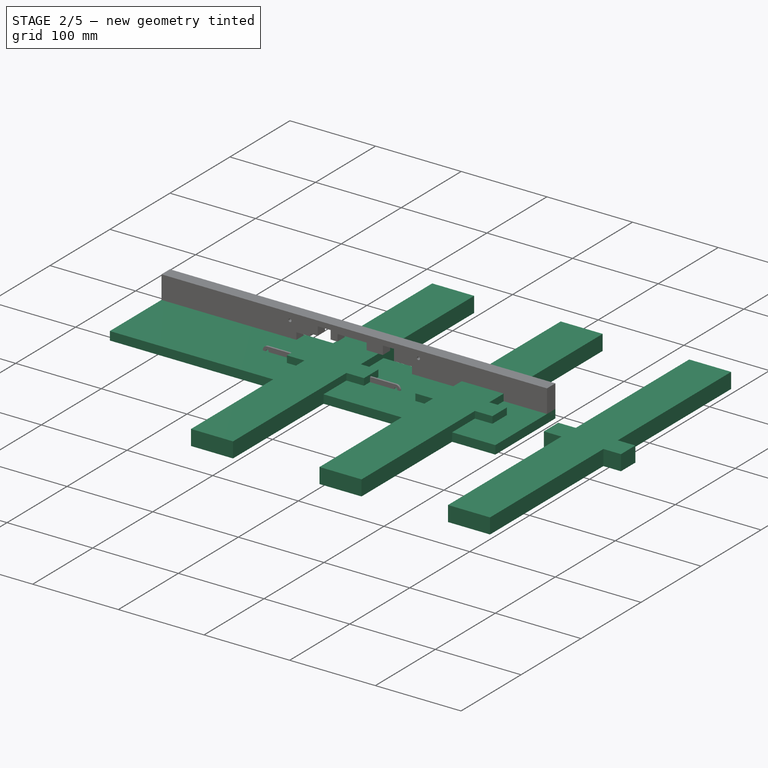
[diagram: stage 2 of 5 — iso view after this stage's code; geometry added in this stage tinted green]
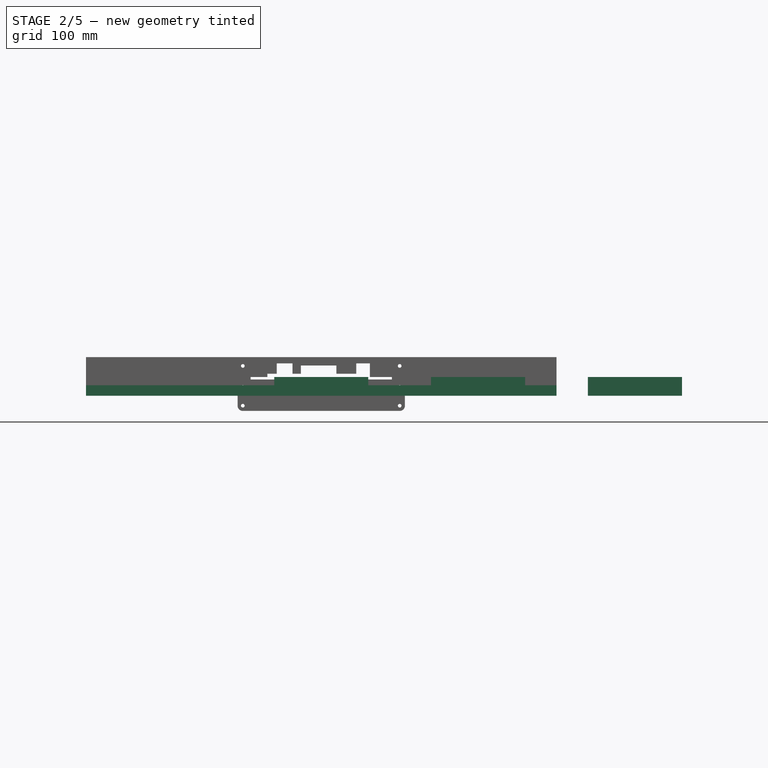
[diagram: stage 2 of 5 — front view after this stage's code; geometry added in this stage tinted green]
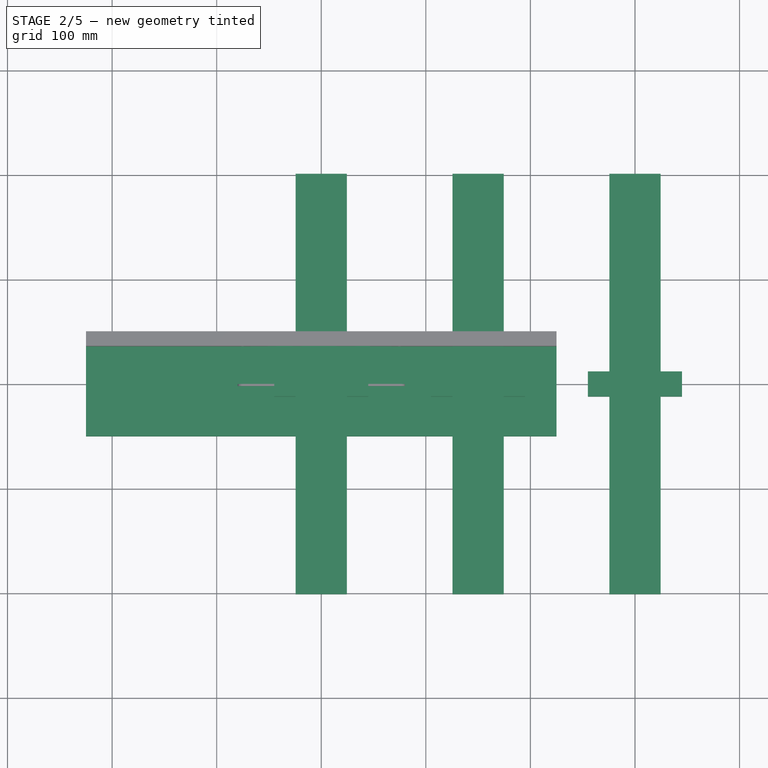
[diagram: stage 2 of 5 — top view after this stage's code; geometry added in this stage tinted green]
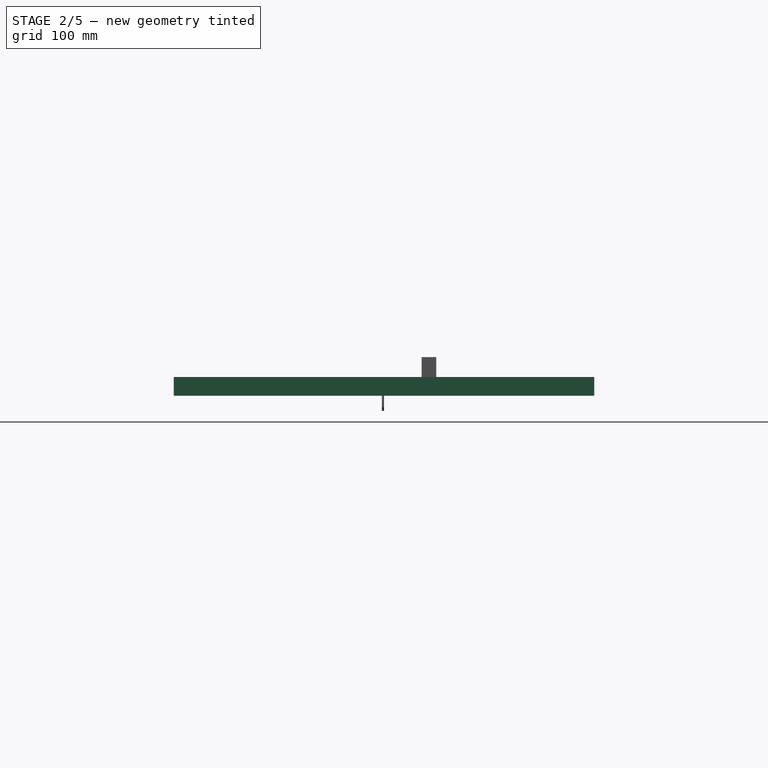
[diagram: stage 2 of 5 — right view after this stage's code; geometry added in this stage tinted green]
FEATURE [PartDesign::Body] Body010
  AllowCompound = true
  Group = -> [Sketch010,Pad010]
  Origin = -> Origin019
  Tip = -> Pad010
FEATURE [Sketcher::SketchObject] Sketch011
  ArcFitTolerance = 0
  AttachmentSupport = -> [XY_Plane012]
  ExternalTypes = [0]
  FullyConstrained = true
  MakeInternals = false
  MapMode = 5
  _ExternalGeoVersion = 0
  sketch-geometry (4):
    g0: LineSegment StartX=-225 StartY=50 StartZ=0 EndX=225 EndY=50 EndZ=0
    g1: LineSegment StartX=225 StartY=50 StartZ=0 EndX=225 EndY=-50 EndZ=0
    g2: LineSegment StartX=225 StartY=-50 StartZ=0 EndX=-225 EndY=-50 EndZ=0
    g3: LineSegment StartX=-225 StartY=-50 StartZ=0 EndX=-225 EndY=50 EndZ=0
  constraints (9):
    c: Coincident(g0,g1)
    c: Coincident(g1,g2)
    c: Coincident(g2,g3)
    c: Coincident(g3,g0)
    c: Horizontal(g0)
    c: Vertical(g3)
    c: Coincident(g0,g-5)
    c: Coincident(g-6,g1)
    c: Coincident(g2,g-4)
FEATURE [PartDesign::Pad] Pad011
  Direction = (0,0,1)
  Length = 10
  Length2 = 100
  Profile = -> Sketch011
  SideType = 0
  Suppressed = false
  Type = 0
  Type2 = 0
FEATURE [PartDesign::Body] Body011  label="Panel_Body"
  AllowCompound = true
  Group = -> [Sketch011,Pad011,Sketch012,Pocket004,Import011,Pocket005,Import012,Pocket006]
  Origin = -> Origin020
  Placement = pos=(0,0,37) rot=(0,0,1;0rad)
  Tip = -> Pocket006
FEATURE [Sketcher::SketchObject] Sketch013
  ArcFitTolerance = 0
  AttachmentSupport = -> [XY_Plane013]
  ExternalTypes = [0]
  FullyConstrained = true
  MakeInternals = false
  MapMode = 5
  _ExternalGeoVersion = 0
  sketch-geometry (4):
    g0: LineSegment StartX=-45 StartY=12 StartZ=0 EndX=45 EndY=12 EndZ=0
    g1: LineSegment StartX=45 StartY=12 StartZ=0 EndX=45 EndY=-12 EndZ=0
    g2: LineSegment StartX=45 StartY=-12 StartZ=0 EndX=-45 EndY=-12 EndZ=0
    g3: LineSegment StartX=-45 StartY=-12 StartZ=0 EndX=-45 EndY=12 EndZ=0
  constraints (11):
    c: Coincident(g0,g1)
    c: Coincident(g1,g2)
    c: Coincident(g2,g3)
    c: Coincident(g3,g0)
    c: Horizontal(g0)
    c: Horizontal(g2)
    c: Vertical(g1)
    c: Vertical(g3)
    c: Symmetric(g0,g1,g-1)
    c: DistanceX(g0,g0) = 90
    c: DistanceY(g1,g1) = 24
FEATURE [PartDesign::Pad] Pad012
  AlongSketchNormal = false
  Direction = (0,0,1)
  Length = 18
  Length2 = 100
  Profile = -> Sketch013
  SideType = 0
  Suppressed = false
  Type = 0
  Type2 = 0
FEATURE [PartDesign::LinearPattern] LinearPattern002
  BaseFeature = -> Pad012
  Direction = -> Sketch013 [H_Axis]
  Length = 300
  Length2 = 100
  Mode = 0
  Mode2 = 0
  Occurrences = 3
  Occurrences2 = 1
  Offset = 150
  Offset2 = 10
  Originals = -> [Pad012]
  Reversed2 = false
  SpacingPattern = [0]
  SpacingPattern2 = [0]
  Spacings = [-1,-1]
  Suppressed = false
  TransformMode = 0
FEATURE [PartDesign::Body] Body012
  AllowCompound = true
  Group = -> [Sketch013,Pad012,LinearPattern002]
  Origin = -> Origin022
  Placement = pos=(-150,213,0) rot=(0,0,1;0rad)
  Tip = -> LinearPattern002
FEATURE [App::Link] Link012  label="Link012(Body012)"
  LinkPlacement = pos=(-150,-213,0) rot=(0,0,1;0rad)
  LinkedObject = -> Body012
  Placement = pos=(-150,-213,0) rot=(0,0,1;0rad)
FEATURE [App::Link] Link013  label="Link013(Body012)"
  LinkPlacement = pos=(-213,149,0) rot=(0,0,1;-1.5708rad)
  LinkedObject = -> Body012
  Placement = pos=(-213,149,0) rot=(0,0,1;-1.5708rad)
FEATURE [App::Link] Link014  label="Link014(*Body012)"
  LinkPlacement = pos=(213,149,0) rot=(0,0,-1;1.5708rad)
  LinkedObject = -> Link013
  Placement = pos=(213,149,0) rot=(0,0,-1;1.5708rad)
FEATURE [Sketcher::SketchObject] Sketch014
  ArcFitTolerance = 0
  AttachmentSupport = -> [XY_Plane014]
  ExternalTypes = [0]
  FullyConstrained = true
  MakeInternals = false
  MapMode = 5
  _ExternalGeoVersion = 0
  sketch-geometry (4):
    g0: LineSegment StartX=-24.5 StartY=201 StartZ=0 EndX=24.5 EndY=201 EndZ=0
    g1: LineSegment StartX=24.5 StartY=201 StartZ=0 EndX=24.5 EndY=-201 EndZ=0
    g2: LineSegment StartX=24.5 StartY=-201 StartZ=0 EndX=-24.5 EndY=-201 EndZ=0
    g3: LineSegment StartX=-24.5 StartY=-201 StartZ=0 EndX=-24.5 EndY=201 EndZ=0
  constraints (11):
    c: Coincident(g0,g1)
    c: Coincident(g1,g2)
    c: Coincident(g2,g3)
    c: Coincident(g3,g0)
    c: Horizontal(g2)
    c: Vertical(g1)
    c: Vertical(g3)
    c: DistanceX(g0,g0) = 49
    c: Symmetric(g0,g0,g-2)
    c: DistanceY(g0,g-3) = 0
    c: DistanceY(g-4,g1) = 0
FEATURE [PartDesign::Pad] Pad013
  AlongSketchNormal = false
  Direction = (0,0,1)
  Length = 18
  Length2 = 100
  Profile = -> Sketch014
  SideType = 0
  Suppressed = false
  Type = 0
  Type2 = 0
FEATURE [PartDesign::LinearPattern] LinearPattern003
  BaseFeature = -> Pad013
  Direction = -> Sketch014 [H_Axis]
  Length = 300
  Length2 = 100
  Mode = 0
  Mode2 = 0
  Occurrences = 3
  Occurrences2 = 1
  Offset = 150
  Offset2 = 10
  Originals = -> [Pad013]
  Reversed2 = false
  SpacingPattern = [0]
  SpacingPattern2 = [0]
  Spacings = [-1,-1]
  Suppressed = false
  TransformMode = 0
FEATURE [PartDesign::Pocket] Pocket009
  BaseFeature = -> Fillet
  Direction = (0,-1,-2e-16)
  Length = 5
  Length2 = 100
  Placement = pos=(0,0,0) rot=(1,0,0;1.5708rad)
  Profile = -> Sketch018
  SideType = 2
  Suppressed = false
  Type = 1
  Type2 = 0
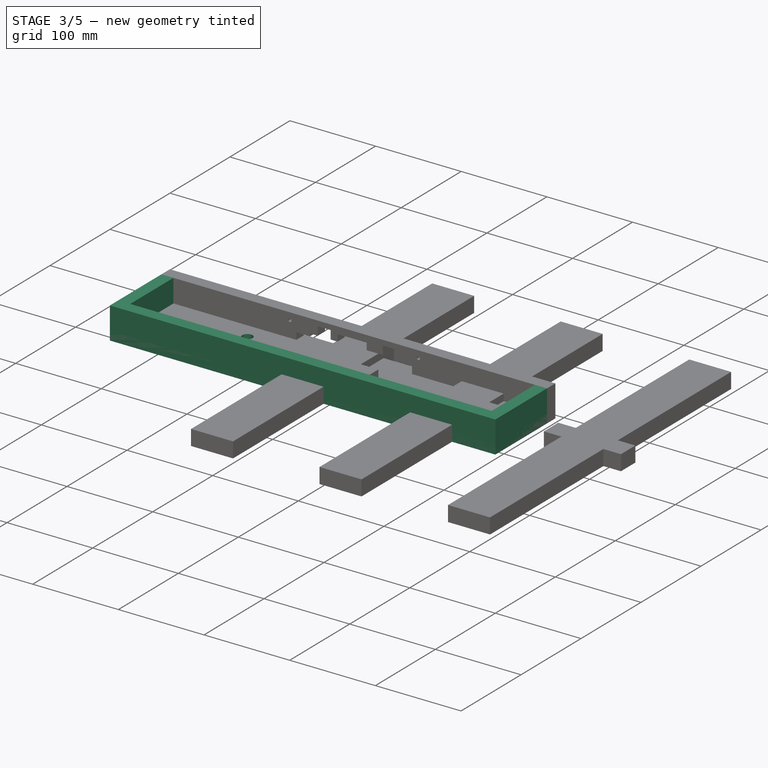
[diagram: stage 3 of 5 — iso view after this stage's code; geometry added in this stage tinted green]
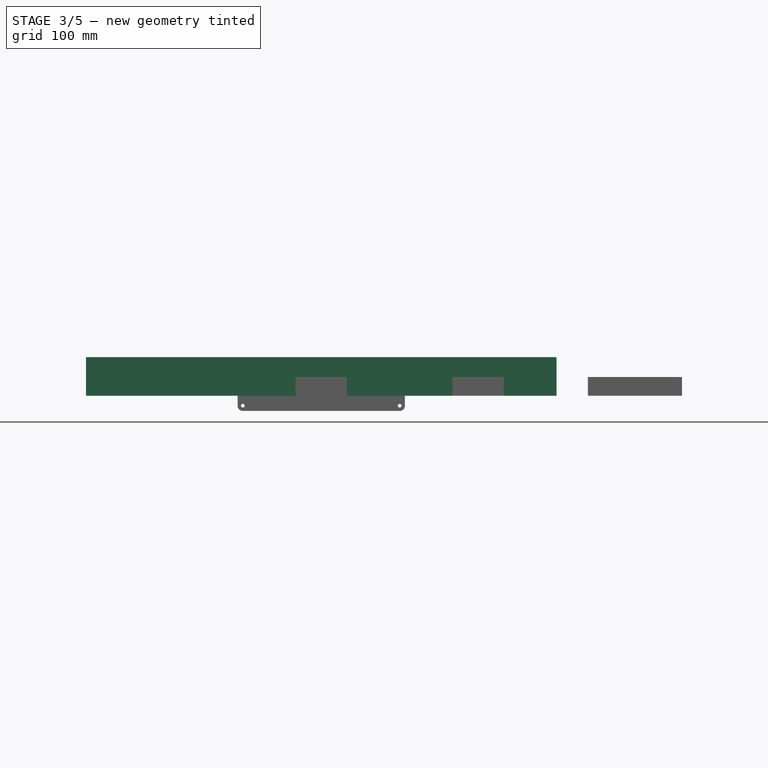
[diagram: stage 3 of 5 — front view after this stage's code; geometry added in this stage tinted green]
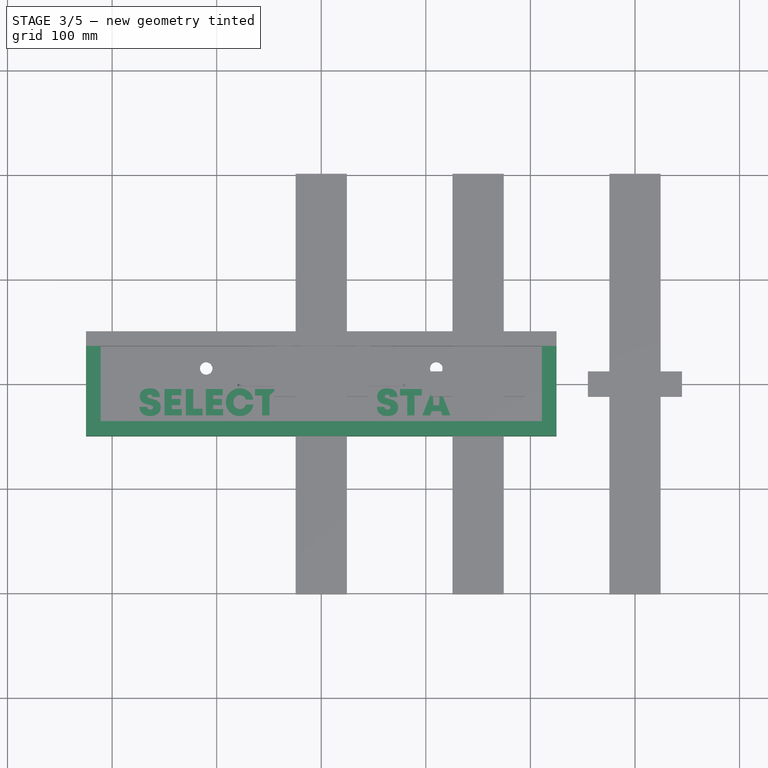
[diagram: stage 3 of 5 — top view after this stage's code; geometry added in this stage tinted green]
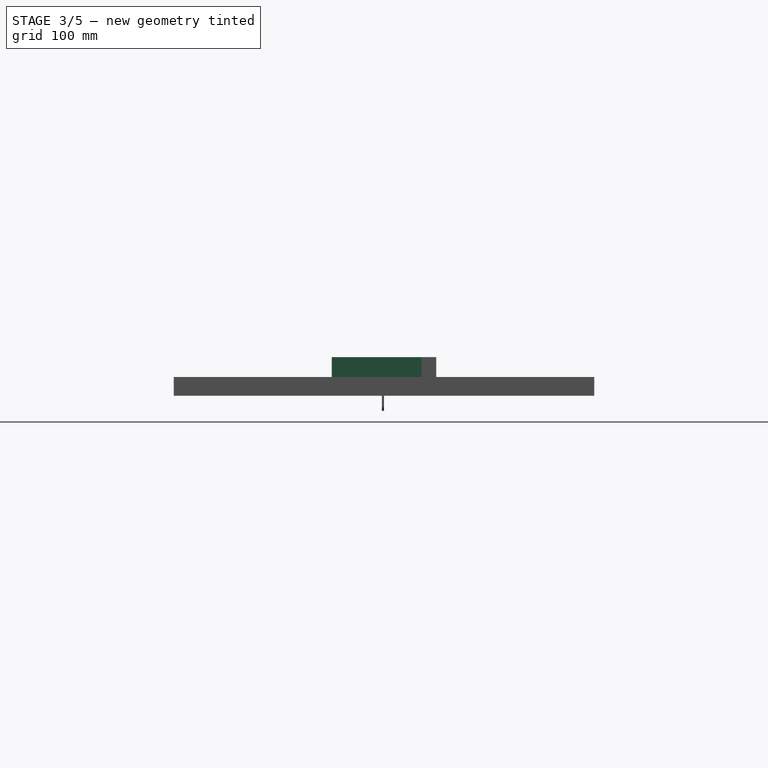
[diagram: stage 3 of 5 — right view after this stage's code; geometry added in this stage tinted green]
FEATURE [PartDesign::Body] Body006
  AllowCompound = true
  Group = -> [Import003,Pad006,Import004,Pocket003,MultiTransform,LinearPattern,LinearPattern001]
  Origin = -> Origin014
  Tip = -> MultiTransform
FEATURE [App::Part] Part004  label="PolycarbonatePad_Part"
  Group = -> [Body006,Link010,Link011]
  Origin = -> Origin013
  Placement = pos=(0,0,24) rot=(0,0,1;0rad)
  expr: .Placement.Base.z = <<Pad>>.Length + <<Pad001>>.Length
FEATURE [Sketcher::SketchObject] Sketch007
  ArcFitTolerance = 0
  AttachmentSupport = -> [XY_Plane008]
  ExternalTypes = [0]
  FullyConstrained = true
  MakeInternals = false
  MapMode = 5
  _ExternalGeoVersion = 0
  expr: Constraints[11] = <<Variables>>.OveralPadLength / 2
  expr: Constraints[8] = <<Variables>>.OveralPadLength
  sketch-geometry (4):
    g0: LineSegment StartX=-225 StartY=-36 StartZ=0 EndX=225 EndY=-36 EndZ=0
    g1: LineSegment StartX=225 StartY=-36 StartZ=0 EndX=225 EndY=-50 EndZ=0
    g2: LineSegment StartX=225 StartY=-50 StartZ=0 EndX=-225 EndY=-50 EndZ=0
    g3: LineSegment StartX=-225 StartY=-50 StartZ=0 EndX=-225 EndY=-36 EndZ=0
  constraints (12):
    c: Coincident(g0,g1)
    c: Coincident(g1,g2)
    c: Coincident(g2,g3)
    c: Coincident(g3,g0)
    c: Horizontal(g0)
    c: Horizontal(g2)
    c: Vertical(g1)
    c: Vertical(g3)
    c: DistanceX(g0,g0) = 450
    c: DistanceY(g3,g3) = 14
    c: DistanceY(g1,g-1) = 50
    c: DistanceX(g-1,g0) = 225
FEATURE [PartDesign::Pad] Pad007
  Direction = (0,0,1)
  Length = 37
  Length2 = 100
  Profile = -> Sketch007
  SideType = 0
  Suppressed = false
  Type = 0
  Type2 = 0
FEATURE [Sketcher::SketchObject] Sketch009
  ArcFitTolerance = 0
  AttachmentSupport = -> [XY_Plane010]
  ExternalTypes = [0]
  FullyConstrained = false
  MakeInternals = false
  MapMode = 5
  _ExternalGeoVersion = 0
  sketch-geometry (4):
    g0: LineSegment StartX=-225 StartY=36 StartZ=0 EndX=-211 EndY=36 EndZ=0
    g1: LineSegment StartX=-211 StartY=36 StartZ=0 EndX=-211 EndY=-36 EndZ=0
    g2: LineSegment StartX=-211 StartY=-36 StartZ=0 EndX=-225 EndY=-36 EndZ=0
    g3: LineSegment StartX=-225 StartY=-36 StartZ=0 EndX=-225 EndY=36 EndZ=0
  constraints (9):
    c: Coincident(g0,g1)
    c: Coincident(g1,g2)
    c: Coincident(g2,g3)
    c: Coincident(g3,g0)
    c: Horizontal(g0)
    c: Vertical(g1)
    c: Coincident(g0,g-3)
    c: Coincident(g2,g-4)
    c: DistanceX(g0,g0) = 14
FEATURE [PartDesign::Pad] Pad009
  Direction = (0,0,1)
  Length = 37
  Length2 = 100
  Profile = -> Sketch009
  SideType = 0
  Suppressed = false
  Type = 0
  Type2 = 0
FEATURE [PartDesign::Body] Body009
  AllowCompound = true
  Group = -> [Sketch009,Pad009]
  Origin = -> Origin018
  Tip = -> Pad009
FEATURE [Sketcher::SketchObject] Sketch010
  ArcFitTolerance = 0
  AttachmentSupport = -> [XY_Plane011]
  ExternalTypes = [0]
  FullyConstrained = true
  MakeInternals = false
  MapMode = 5
  _ExternalGeoVersion = 0
  sketch-geometry (4):
    g0: LineSegment StartX=211 StartY=36 StartZ=0 EndX=225 EndY=36 EndZ=0
    g1: LineSegment StartX=225 StartY=36 StartZ=0 EndX=225 EndY=-36 EndZ=0
    g2: LineSegment StartX=225 StartY=-36 StartZ=0 EndX=211 EndY=-36 EndZ=0
    g3: LineSegment StartX=211 StartY=-36 StartZ=0 EndX=211 EndY=36 EndZ=0
  constraints (10):
    c: Coincident(g0,g1)
    c: Coincident(g1,g2)
    c: Coincident(g2,g3)
    c: Coincident(g3,g0)
    c: Horizontal(g2)
    c: Vertical(g3)
    c: Coincident(g-3,g0)
    c: Coincident(g1,g-4)
    c: DistanceX(g0,g0) = 14
    c: Horizontal(g0)
FEATURE [PartDesign::Pad] Pad010
  Direction = (0,0,1)
  Length = 37
  Length2 = 100
  Profile = -> Sketch010
  SideType = 0
  Suppressed = false
  Type = 0
  Type2 = 0
FEATURE [Sketcher::SketchObject] Sketch012
  ArcFitTolerance = 0
  AttachmentSupport = -> [XY_Plane012]
  ExternalGeometry = -> [Pad011]
  ExternalTypes = [0]
  FullyConstrained = true
  MakeInternals = false
  MapMode = 5
  _ExternalGeoVersion = 0
  sketch-geometry (2):
    g0: Circle CenterX=110 CenterY=15 CenterZ=0 NormalX=0 NormalY=0 NormalZ=1 AngleXU=0 Radius=6
    g1: Circle CenterX=-110 CenterY=15 CenterZ=0 NormalX=0 NormalY=0 NormalZ=1 AngleXU=0 Radius=6
  constraints (5):
    c: Diameter(g0) = 12
    c: DistanceX(g-1,g0) = 110
    c: DistanceY(g0,g-3) = 35
    c: Diameter(g1) = 12
    c: Symmetric(g0,g1,g-2)
FEATURE [PartDesign::Pocket] Pocket004
  BaseFeature = -> Pad011
  Direction = (0,0,-1)
  Length = 5
  Length2 = 100
  Profile = -> Sketch012
  SideType = 2
  Suppressed = false
  Type = 1
  Type2 = 0
FEATURE [Part::Part2DObjectPython] ShapeString  label="START_ShapeString"  # Draft 2D object (typed FeaturePython)
  FontFile = ../Fonts/mont/Mont-HeavyDEMO.otf
  Fuse = false
  Justification = 6
  JustificationReference = 0
  KeepLeftMargin = true
  MakeFace = true
  ObliqueAngle = 0
  Placement = pos=(52,-30,47) rot=(0,0,1;0rad)
  ScaleToSize = false
  Size = 15
  String = START
  Tracking = 0
FEATURE [PartDesign::SubShapeBinder] Import011  label="Import011(START_ShapeString)"
  BindCopyOnChange = 0
  BindMode = 0
  ClaimChildren = false
  Context = -> Part005 [Body011.Import011.]
  Fuse = false
  MakeFace = false
  OffsetFill = false
  OffsetIntersection = false
  OffsetJoinType = 0
  OffsetOpenResult = false
  PartialLoad = false
  Relative = true
  Support = -> [ShapeString]
  _Version = 8
FEATURE [PartDesign::Pocket] Pocket005  label="START_Pocket"
  BaseFeature = -> Pocket004
  Direction = (0,0,-1)
  Length = 3.1
  Length2 = 100
  Profile = -> Import011
  SideType = 0
  Suppressed = false
  Type = 0
  Type2 = 0
FEATURE [Part::Part2DObjectPython] ShapeString001  label="SELECT_ShapeString"  # Draft 2D object (typed FeaturePython)
  FontFile = ../Fonts/mont/Mont-HeavyDEMO.otf
  Fuse = false
  Justification = 6
  JustificationReference = 0
  KeepLeftMargin = true
  MakeFace = true
  ObliqueAngle = 0
  Placement = pos=(-175,-30,47) rot=(0.421214,-0.100003,-0.901431;0rad)
  ScaleToSize = false
  Size = 15
  String = SELECT
  Tracking = 0
FEATURE [PartDesign::SubShapeBinder] Import012  label="Import012(SELECT_ShapeString)"
  BindCopyOnChange = 0
  BindMode = 0
  ClaimChildren = false
  Context = -> Part005 [Body011.Pocket006.Import012.]
  Fuse = false
  MakeFace = false
  OffsetFill = false
  OffsetIntersection = false
  OffsetJoinType = 0
  OffsetOpenResult = false
  PartialLoad = false
  Relative = true
  Support = -> [ShapeString001]
  _Version = 8
FEATURE [PartDesign::Pocket] Pocket006  label="SELECT_Pocket"
  BaseFeature = -> Pocket005
  Direction = (0,0,-1)
  Length = 3.1
  Length2 = 100
  Profile = -> Import012
  SideType = 0
  Suppressed = false
  Type = 0
  Type2 = 0
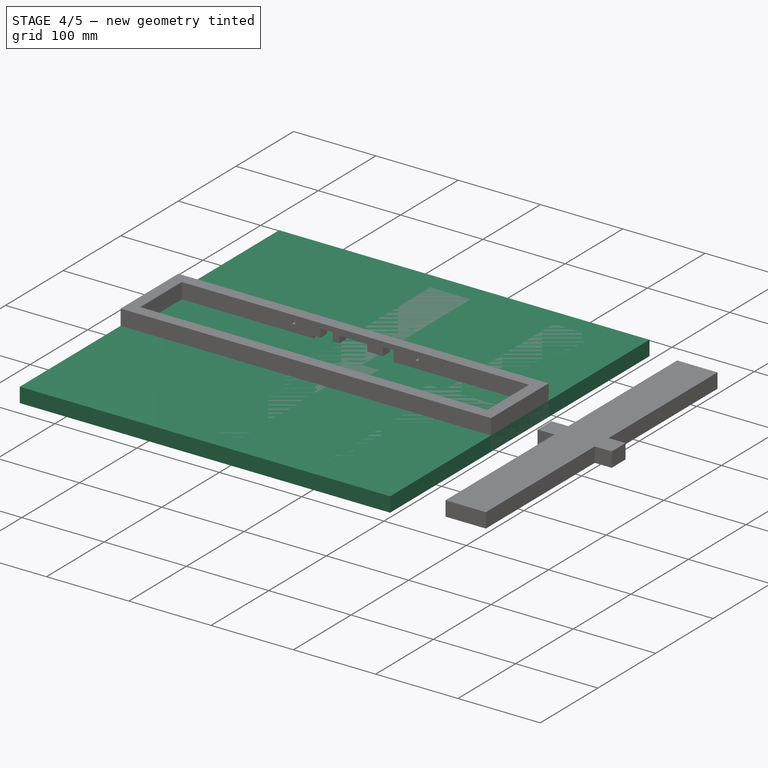
[diagram: stage 4 of 5 — iso view after this stage's code; geometry added in this stage tinted green]
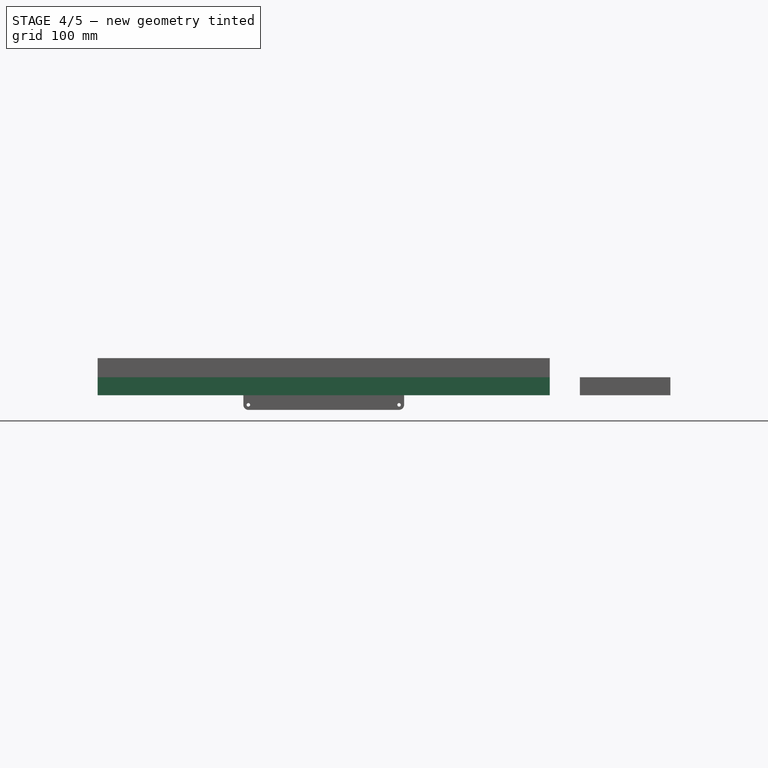
[diagram: stage 4 of 5 — front view after this stage's code; geometry added in this stage tinted green]
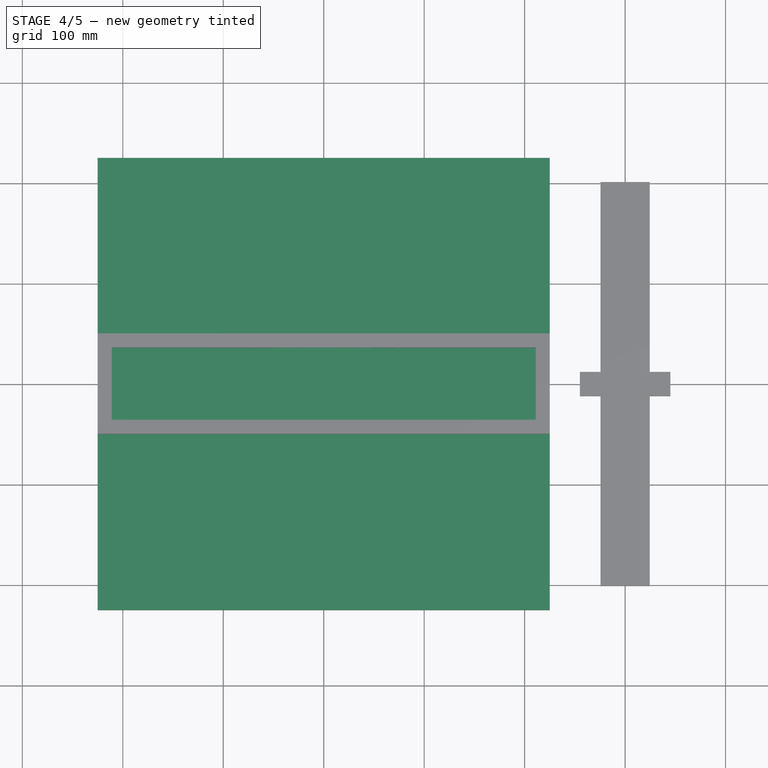
[diagram: stage 4 of 5 — top view after this stage's code; geometry added in this stage tinted green]
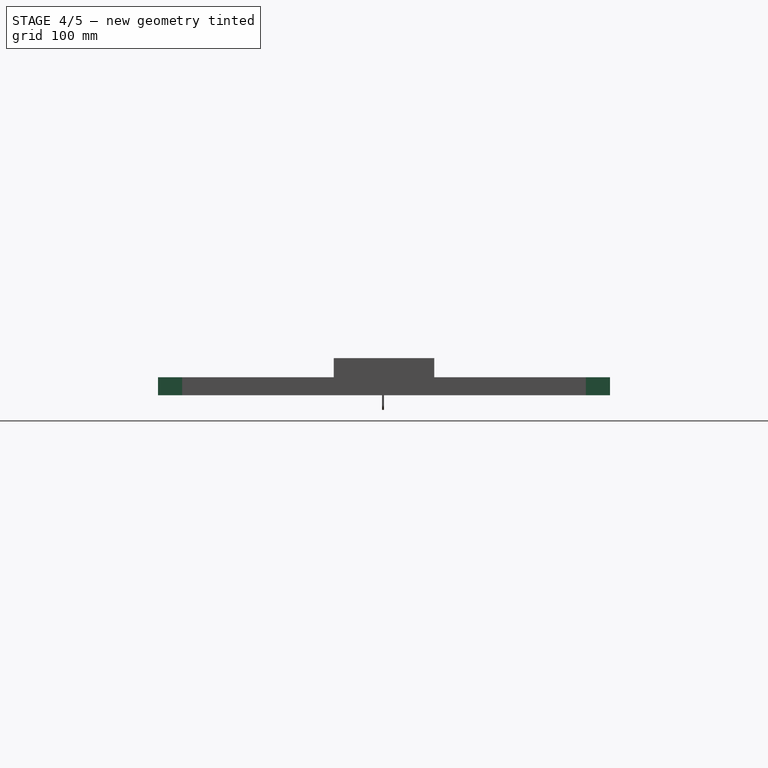
[diagram: stage 4 of 5 — right view after this stage's code; geometry added in this stage tinted green]
FEATURE [Sketcher::SketchObject] Sketch
  ArcFitTolerance = 0
  AttachmentSupport = -> [XY_Plane]
  ExternalTypes = [0]
  FullyConstrained = true
  MakeInternals = false
  MapMode = 5
  _ExternalGeoVersion = 0
  expr: Constraints[10] = <<Variables>>.OveralPadLength
  expr: Constraints[9] = <<Variables>>.OveralPadLength
  sketch-geometry (4):
    g0: LineSegment StartX=-225 StartY=225 StartZ=0 EndX=225 EndY=225 EndZ=0
    g1: LineSegment StartX=225 StartY=225 StartZ=0 EndX=225 EndY=-225 EndZ=0
    g2: LineSegment StartX=225 StartY=-225 StartZ=0 EndX=-225 EndY=-225 EndZ=0
    g3: LineSegment StartX=-225 StartY=-225 StartZ=0 EndX=-225 EndY=225 EndZ=0
  constraints (11):
    c: Coincident(g0,g1)
    c: Coincident(g1,g2)
    c: Coincident(g2,g3)
    c: Coincident(g3,g0)
    c: Horizontal(g0)
    c: Horizontal(g2)
    c: Vertical(g1)
    c: Vertical(g3)
    c: Symmetric(g0,g1,g-1)
    c: DistanceX(g0,g0) = 450
    c: DistanceY(g1,g1) = 450
FEATURE [PartDesign::Pad] Pad
  Direction = (0,0,1)
  Length = 18
  Length2 = 100
  Profile = -> Sketch
  SideType = 0
  Suppressed = false
  Type = 0
  Type2 = 0
  expr: Length = <<Variables>>.OverallPadThickness
FEATURE [PartDesign::Body] Body
  AllowCompound = true
  Group = -> [Sketch,Pad]
  Origin = -> Origin
  Tip = -> Pad
FEATURE [App::Part] Part001  label="Body_Part"
  Group = -> [Body]
  Origin = -> Origin004
FEATURE [Sketcher::SketchObject] Sketch001
  ArcFitTolerance = 0
  AttachmentSupport = -> [XY_Plane001]
  ExternalTypes = [0]
  FullyConstrained = true
  MakeInternals = false
  MapMode = 5
  _ExternalGeoVersion = 0
  sketch-geometry (4):
    g0: LineSegment StartX=-75 StartY=75 StartZ=0 EndX=75 EndY=75 EndZ=0
    g1: LineSegment StartX=75 StartY=75 StartZ=0 EndX=75 EndY=-75 EndZ=0
    g2: LineSegment StartX=75 StartY=-75 StartZ=0 EndX=-75 EndY=-75 EndZ=0
    g3: LineSegment StartX=-75 StartY=-75 StartZ=0 EndX=-75 EndY=75 EndZ=0
  constraints (11):
    c: Coincident(g0,g1)
    c: Coincident(g1,g2)
    c: Coincident(g2,g3)
    c: Coincident(g3,g0)
    c: Horizontal(g0)
    c: Horizontal(g2)
    c: Vertical(g1)
    c: Vertical(g3)
    c: Symmetric(g0,g1,g-1)
    c: DistanceX(g0,g0) = 150
    c: DistanceY(g1,g1) = 150
FEATURE [PartDesign::Pad] Pad001
  Direction = (0,0,1)
  Length = 6
  Length2 = 100
  Profile = -> Sketch001
  SideType = 0
  Suppressed = false
  Type = 0
  Type2 = 0
FEATURE [Sketcher::SketchObject] Sketch002
  ArcFitTolerance = 0
  AttachmentSupport = -> [XY_Plane002]
  ExternalTypes = [0]
  FullyConstrained = true
  MakeInternals = false
  MapMode = 5
  _ExternalGeoVersion = 0
  expr: Constraints[10] = <<Variables>>.PadLength
  expr: Constraints[9] = <<Variables>>.PadLength
  sketch-geometry (4):
    g0: LineSegment StartX=-75 StartY=75 StartZ=0 EndX=75 EndY=75 EndZ=0
    g1: LineSegment StartX=75 StartY=75 StartZ=0 EndX=75 EndY=-75 EndZ=0
    g2: LineSegment StartX=75 StartY=-75 StartZ=0 EndX=-75 EndY=-75 EndZ=0
    g3: LineSegment StartX=-75 StartY=-75 StartZ=0 EndX=-75 EndY=75 EndZ=0
  constraints (11):
    c: Coincident(g0,g1)
    c: Coincident(g1,g2)
    c: Coincident(g2,g3)
    c: Coincident(g3,g0)
    c: Horizontal(g0)
    c: Horizontal(g2)
    c: Vertical(g1)
    c: Vertical(g3)
    c: Symmetric(g0,g1,g-1)
    c: DistanceX(g0,g0) = 150
    c: DistanceY(g1,g1) = 150
FEATURE [PartDesign::Pad] Pad002
  Direction = (0,0,1)
  Length = 6
  Length2 = 100
  Profile = -> Sketch002
  SideType = 0
  Suppressed = false
  Type = 0
  Type2 = 0
  expr: Length = <<Variables>>.PadThickness
FEATURE [PartDesign::Body] Body005  label="Isolation_Body"
  AllowCompound = true
  Group = -> [Sketch006,Pad005]
  Origin = -> Origin012
  Placement = pos=(0,0,0.5) rot=(0,0,1;0rad)
  Tip = -> Pad005
  expr: .Placement.Base.z = <<Pad004>>.Length
FEATURE [App::Part] Part003  label="Contact_Part"
  Group = -> [Body004,Link008,Body005,Link009]
  Origin = -> Origin009
  Placement = pos=(0,0,4) rot=(0,0,1;0rad)
  expr: .Placement.Base.z = <<Pad003>>.Length
FEATURE [App::Part] Part002  label="Pad_Bottom_Part"
  Group = -> [Body002,Body003,Part003]
  Origin = -> Origin007
  Placement = pos=(0,-150,18) rot=(0,0,1;0rad)
FEATURE [App::Link] Link010  label="Link010(Sketch001)"
  LinkPlacement = pos=(-150,-150,0) rot=(0,0,1;0rad)
  LinkedObject = -> Sketch001
  Placement = pos=(-150,-150,0) rot=(0,0,1;0rad)
FEATURE [PartDesign::SubShapeBinder] Import003  label="Import003(*Sketch001)"
  BindCopyOnChange = 0
  BindMode = 0
  ClaimChildren = false
  Context = -> Part004 [Body006.Import003.]
  Fuse = false
  MakeFace = false
  OffsetFill = false
  OffsetIntersection = false
  OffsetJoinType = 0
  OffsetOpenResult = false
  PartialLoad = false
  Relative = true
  Support = -> [Link010]
  _Version = 8
FEATURE [PartDesign::Pad] Pad006
  Direction = (0,0,1)
  Length = 3
  Length2 = 100
  Profile = -> Import003
  SideType = 0
  Suppressed = false
  Type = 0
  Type2 = 0
FEATURE [App::Link] Link011  label="Link011(Sketch_Screw_Holes)"
  LinkPlacement = pos=(-150,-150,0) rot=(1,0,0;3.14159rad)
  LinkedObject = -> Sketch004
  Placement = pos=(-150,-150,0) rot=(1,0,0;3.14159rad)
FEATURE [PartDesign::SubShapeBinder] Import004  label="Import004(*Sketch_Screw_Holes)"
  BindCopyOnChange = 0
  BindMode = 0
  ClaimChildren = false
  Context = -> Part004 [Body006.Import004.]
  Fuse = false
  MakeFace = false
  OffsetFill = false
  OffsetIntersection = false
  OffsetJoinType = 0
  OffsetOpenResult = false
  PartialLoad = false
  Relative = true
  Support = -> [Link011]
  _Version = 8
FEATURE [PartDesign::Pocket] Pocket003
  BaseFeature = -> Pad006
  Direction = (0,0,-1)
  Length = 5
  Length2 = 100
  Profile = -> Import004
  SideType = 2
  Suppressed = false
  Type = 1
  Type2 = 0
FEATURE [PartDesign::LinearPattern] LinearPattern
  Direction = -> X_Axis007
  Length = 300
  Length2 = 100
  Mode = 0
  Mode2 = 0
  Occurrences = 3
  Occurrences2 = 1
  Offset = 150
  Offset2 = 10
  Reversed2 = false
  SpacingPattern = [0]
  SpacingPattern2 = [0]
  Spacings = [-1,-1]
  Suppressed = false
  TransformMode = 0
FEATURE [PartDesign::LinearPattern] LinearPattern001
  Direction = -> Y_Axis007
  Length = 300
  Length2 = 100
  Mode = 0
  Mode2 = 0
  Occurrences = 3
  Occurrences2 = 1
  Offset = 150
  Offset2 = 10
  Reversed2 = false
  SpacingPattern = [0]
  SpacingPattern2 = [0]
  Spacings = [-1,-1]
  Suppressed = false
  TransformMode = 0
FEATURE [PartDesign::MultiTransform] MultiTransform
  BaseFeature = -> Pocket003
  Originals = -> [Pocket003,Pad006]
  Suppressed = false
  TransformMode = 0
  Transformations = -> [LinearPattern,LinearPattern001]
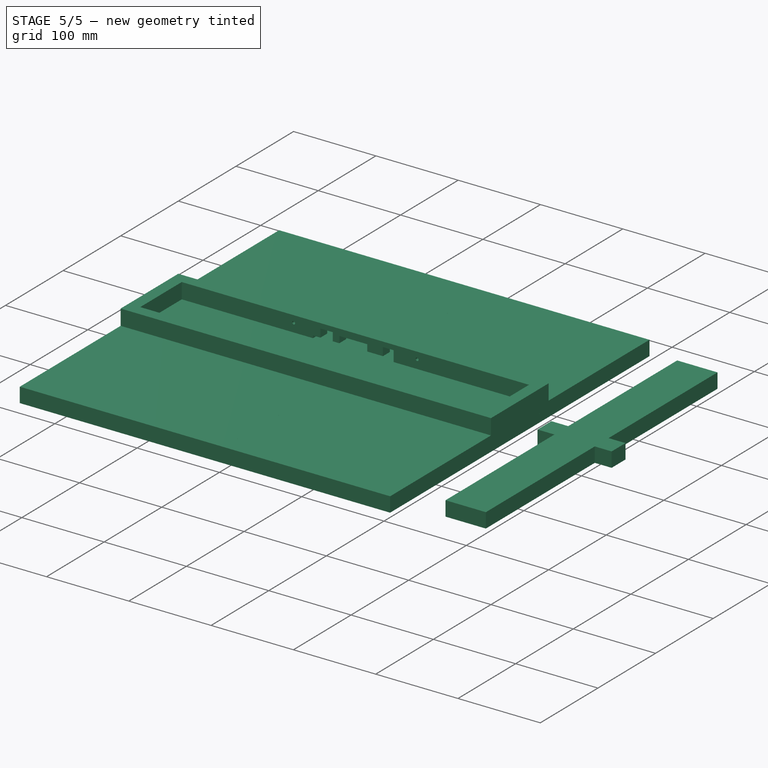
[diagram: stage 5 of 5 — iso view after this stage's code; geometry added in this stage tinted green]
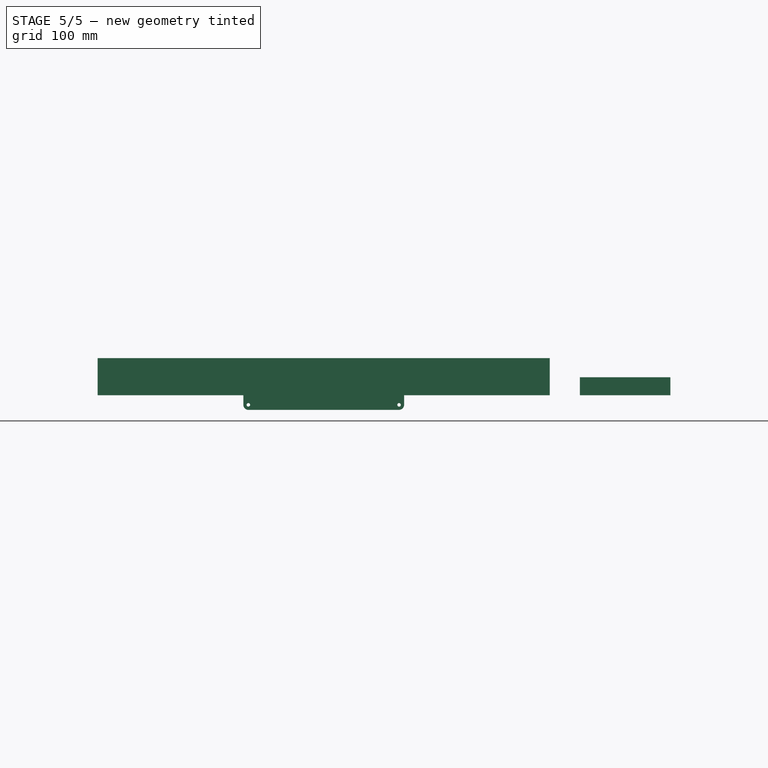
[diagram: stage 5 of 5 — front view after this stage's code; geometry added in this stage tinted green]
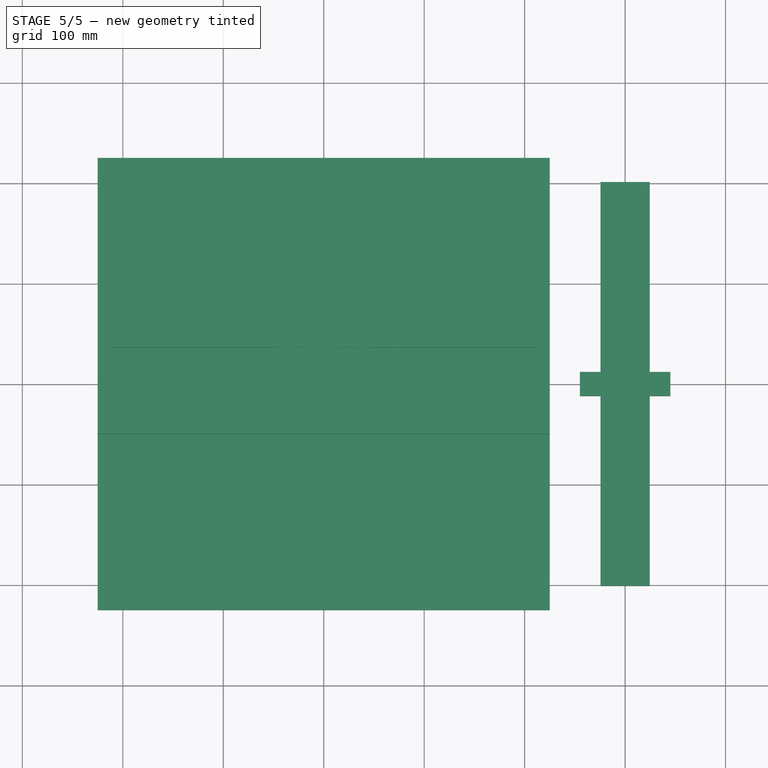
[diagram: stage 5 of 5 — top view after this stage's code; geometry added in this stage tinted green]
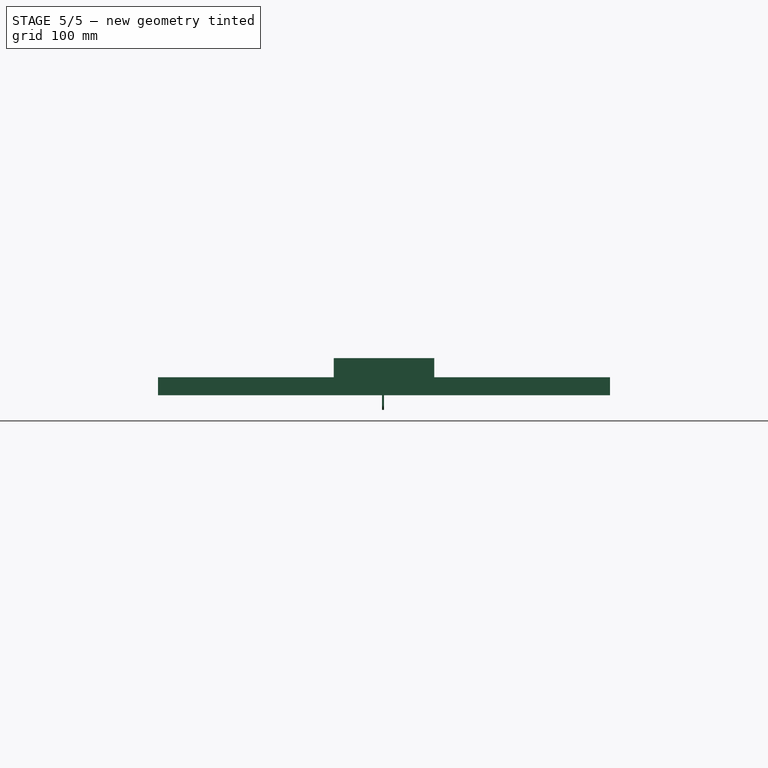
[diagram: stage 5 of 5 — right view after this stage's code; geometry added in this stage tinted green]
FEATURE [Sketcher::SketchObject] Sketch003
  ArcFitTolerance = 0
  AttachmentSupport = -> [XY_Plane002]
  ExternalGeometry = -> [Pad002]
  ExternalTypes = [0]
  FullyConstrained = true
  MakeInternals = false
  MapMode = 5
  _ExternalGeoVersion = 0
  expr: Constraints[10] = <<Variables>>.InnerPadBorderLength
  expr: Constraints[11] = <<Variables>>.InnerPadCornerLength
  expr: Constraints[12] = <<Variables>>.InnerPadBorderLength
  expr: Constraints[8] = <<Variables>>.InnerPadCornerLength
  sketch-geometry (8):
    g0: LineSegment StartX=-60 StartY=40 StartZ=0 EndX=-40 EndY=60 EndZ=0
    g1: LineSegment StartX=-40 StartY=60 StartZ=0 EndX=40 EndY=60 EndZ=0
    g2: LineSegment StartX=40 StartY=60 StartZ=0 EndX=60 EndY=40 EndZ=0
    g3: LineSegment StartX=60 StartY=40 StartZ=0 EndX=60 EndY=-40 EndZ=0
    g4: LineSegment StartX=60 StartY=-40 StartZ=0 EndX=40 EndY=-60 EndZ=0
    g5: LineSegment StartX=40 StartY=-60 StartZ=0 EndX=-40 EndY=-60 EndZ=0
    g6: LineSegment StartX=-40 StartY=-60 StartZ=0 EndX=-60 EndY=-40 EndZ=0
    g7: LineSegment StartX=-60 StartY=-40 StartZ=0 EndX=-60 EndY=40 EndZ=0
  constraints (18):
    c: Coincident(g0,g1)
    c: Coincident(g1,g2)
    c: Coincident(g2,g3)
    c: Coincident(g3,g4)
    c: Coincident(g4,g5)
    c: Coincident(g5,g6)
    c: Coincident(g6,g7)
    c: Coincident(g7,g0)
    c: DistanceX(g-3,g0) = 35
    c: Symmetric(g0,g1,g-2)
    c: DistanceY(g0,g-3) = 15
    c: DistanceY(g0,g-3) = 35
    c: DistanceX(g-3,g0) = 15
    c: Symmetric(g0,g6,g-1)
    c: Symmetric(g0,g5,g-1)
    c: Symmetric(g0,g2,g-2)
    c: Symmetric(g2,g3,g-1)
    c: Symmetric(g1,g4,g-1)
FEATURE [PartDesign::Pocket] Pocket
  BaseFeature = -> Pad002
  Direction = (0,0,-1)
  Length = 5
  Length2 = 100
  Profile = -> Sketch003
  SideType = 2
  Suppressed = false
  Type = 1
  Type2 = 0
FEATURE [App::Link] Link  label="Pad_BottomRight_Part"
  LinkPlacement = pos=(150,-150,18) rot=(0,0,1;0rad)
  LinkedObject = -> Part
  Placement = pos=(150,-150,18) rot=(0,0,1;0rad)
FEATURE [App::Link] Link001  label="Pad_Middle_Part"
  LinkPlacement = pos=(0,0,18) rot=(0,0,1;0rad)
  LinkedObject = -> Part
  Placement = pos=(0,0,18) rot=(0,0,1;0rad)
FEATURE [App::Link] Link002  label="Pad_UpLeft_Part"
  LinkPlacement = pos=(-150,150,18) rot=(0,0,1;0rad)
  LinkedObject = -> Part
  Placement = pos=(-150,150,18) rot=(0,0,1;0rad)
FEATURE [App::Link] Link003  label="Pad_UpRight_Part"
  LinkPlacement = pos=(150,150,18) rot=(0,0,1;0rad)
  LinkedObject = -> Part
  Placement = pos=(150,150,18) rot=(0,0,1;0rad)
FEATURE [App::Link] Link004  label="Pad_MiddleLeft_Part"
  LinkPlacement = pos=(-150,0,18) rot=(0,0,1;0rad)
  LinkedObject = -> Part002
  Placement = pos=(-150,0,18) rot=(0,0,1;0rad)
FEATURE [Sketcher::SketchObject] Sketch004  label="Sketch_Screw_Holes"
  ArcFitTolerance = 0
  AttachmentSupport = -> [Pad002]
  ExternalGeometry = -> [Pad002]
  ExternalTypes = [0]
  FullyConstrained = true
  MakeInternals = false
  MapMode = 5
  Placement = pos=(0,0,0) rot=(1,0,0;3.14159rad)
  _ExternalGeoVersion = 0
  expr: Constraints[0] = <<Variables>>.ScrewCornerPosition
  expr: Constraints[1] = <<Variables>>.ScrewCornerPosition
  expr: Constraints[2] = <<Variables>>.PadScrewDiameter
  expr: Constraints[6] = <<Variables>>.PadScrewDiameter
  expr: Constraints[7] = <<Variables>>.PadScrewDiameter
  expr: Constraints[8] = <<Variables>>.PadScrewDiameter
  sketch-geometry (4):
    g0: Circle CenterX=-63 CenterY=63 CenterZ=0 NormalX=0 NormalY=0 NormalZ=1 AngleXU=0 Radius=2.5
    g1: Circle CenterX=63 CenterY=63 CenterZ=0 NormalX=0 NormalY=0 NormalZ=1 AngleXU=0 Radius=2.5
    g2: Circle CenterX=63 CenterY=-63 CenterZ=0 NormalX=0 NormalY=0 NormalZ=1 AngleXU=0 Radius=2.5
    g3: Circle CenterX=-63 CenterY=-63 CenterZ=0 NormalX=0 NormalY=0 NormalZ=1 AngleXU=0 Radius=2.5
  constraints (9):
    c: DistanceX(g-3,g0) = 12
    c: DistanceY(g0,g-3) = 12
    c: Diameter(g0) = 5
    c: Symmetric(g0,g1,g-2)
    c: Symmetric(g0,g3,g-1)
    c: Symmetric(g1,g2,g-1)
    c: Diameter(g1) = 5
    c: Diameter(g2) = 5
    c: Diameter(g3) = 5
FEATURE [PartDesign::Pocket] Pocket001  label="Screw_Pocket"
  BaseFeature = -> Pocket
  Direction = (0,0,1)
  Length = 5
  Length2 = 100
  Profile = -> Sketch004
  SideType = 2
  Suppressed = false
  Type = 1
  Type2 = 0
FEATURE [PartDesign::Body] Body002  label="Border_Body"
  AllowCompound = true
  Group = -> [Sketch002,Pad002,Sketch003,Sketch004,Pocket,Pocket001]
  Origin = -> Origin008
  Tip = -> Pocket001
FEATURE [App::Link] Link005  label="Pad_MiddleRight_Part"
  LinkPlacement = pos=(150,0,18) rot=(0,0,1;0rad)
  LinkedObject = -> Part002
  Placement = pos=(150,0,18) rot=(0,0,1;0rad)
FEATURE [App::Link] Link006  label="Pad_Up_Part"
  LinkPlacement = pos=(0,150,18) rot=(0,0,1;0rad)
  LinkedObject = -> Part002
  Placement = pos=(0,150,18) rot=(0,0,1;0rad)
FEATURE [Spreadsheet::Sheet] Spreadsheet  label="Variables"
  cells = A2='Variables for global size of DDR pad; B4='Dance Pad overall pad length (mm) :; C4(OveralPadLength)=450; B5='Overall pad thickness (mm) :; C5(OverallPadThickness)=18; A7='Variables for a single Pad; B9='Pad length (mm) :; C9(PadLength)==OveralPadLength / 3; B10='Pad thickness (mm) :; C10(PadThickness)=6; B11='Inner pad border length (mm) :; C11(InnerPadBorderLength)=15; B12='Inner pad corner length (mm) :; C12(InnerPadCornerLength)=35; B13='Pad screw diameter (mm) :; C13(PadScrewDiameter)=5; B14='Screw corner position (mm) :; C14(ScrewCornerPosition)=12; A16='Variables for contacts; B18='Contact length (mm) :; C18(ContactLength)=90
FEATURE [App::Link] Link007  label="Link007(Sketch_Screw_Holes)"
  LinkPlacement = pos=(0,0,0) rot=(1,0,0;3.14159rad)
  LinkedObject = -> Sketch004
  Placement = pos=(0,0,0) rot=(1,0,0;3.14159rad)
FEATURE [PartDesign::SubShapeBinder] Import  label="Import(*Sketch_Screw_Holes)"
  BindCopyOnChange = 0
  BindMode = 0
  ClaimChildren = false
  Context = -> Part [Body001.Import.]
  Fuse = false
  MakeFace = false
  OffsetFill = false
  OffsetIntersection = false
  OffsetJoinType = 0
  OffsetOpenResult = false
  PartialLoad = false
  Relative = true
  Support = -> [Link007]
  _Version = 8
FEATURE [PartDesign::Pocket] Pocket002
  BaseFeature = -> Pad001
  Direction = (0,0,-1)
  Length = 5
  Length2 = 100
  Profile = -> Import
  SideType = 2
  Suppressed = false
  Type = 1
  Type2 = 0
FEATURE [PartDesign::Body] Body001
  AllowCompound = true
  Group = -> [Sketch001,Pad001,Import,Pocket002]
  Origin = -> Origin006
  Tip = -> Pocket002
FEATURE [App::Part] Part  label="Pad_BottomLeft_Part"
  Group = -> [Body001,Link007]
  Origin = -> Origin005
  Placement = pos=(-150,-150,18) rot=(0,0,1;0rad)
FEATURE [Sketcher::SketchObject] Sketch005
  ArcFitTolerance = 0
  AttachmentSupport = -> [XY_Plane003]
  ExternalTypes = [0]
  FullyConstrained = true
  MakeInternals = false
  MapMode = 5
  _ExternalGeoVersion = 0
  expr: Constraints[9] = <<Variables>>.ContactLength
  sketch-geometry (4):
    g0: LineSegment StartX=-45 StartY=45 StartZ=0 EndX=45 EndY=45 EndZ=0
    g1: LineSegment StartX=45 StartY=45 StartZ=0 EndX=45 EndY=-45 EndZ=0
    g2: LineSegment StartX=45 StartY=-45 StartZ=0 EndX=-45 EndY=-45 EndZ=0
    g3: LineSegment StartX=-45 StartY=-45 StartZ=0 EndX=-45 EndY=45 EndZ=0
  constraints (11):
    c: Coincident(g0,g1)
    c: Coincident(g1,g2)
    c: Coincident(g2,g3)
    c: Coincident(g3,g0)
    c: Horizontal(g0)
    c: Horizontal(g2)
    c: Vertical(g1)
    c: Vertical(g3)
    c: Symmetric(g0,g1,g-1)
    c: DistanceX(g0,g0) = 90
    c: Equal(g0,g1)
FEATURE [PartDesign::Pad] Pad003
  Direction = (0,0,1)
  Length = 4
  Length2 = 100
  Profile = -> Sketch005
  SideType = 0
  Suppressed = false
  Type = 0
  Type2 = 0
FEATURE [PartDesign::Body] Body003  label="ContactBase_Body"
  AllowCompound = true
  Group = -> [Sketch005,Pad003]
  Origin = -> Origin010
  Tip = -> Pad003
FEATURE [App::Link] Link008  label="Link008(Sketch005)"
  LinkedObject = -> Sketch005
FEATURE [PartDesign::SubShapeBinder] Import001  label="Import001(*Sketch005)"
  BindCopyOnChange = 0
  BindMode = 0
  ClaimChildren = false
  Context = -> Link005 [Part003.Body004.Import001.]
  Fuse = false
  MakeFace = false
  OffsetFill = false
  OffsetIntersection = false
  OffsetJoinType = 0
  OffsetOpenResult = false
  PartialLoad = false
  Relative = true
  Support = -> [Link008]
  _Version = 8
FEATURE [PartDesign::Pad] Pad004
  Direction = (0,0,1)
  Length = 0.5
  Length2 = 100
  Profile = -> Import001
  SideType = 0
  Suppressed = false
  Type = 0
  Type2 = 0
FEATURE [PartDesign::Body] Body004  label="BottomContact_Body"
  AllowCompound = true
  Group = -> [Import001,Pad004]
  Origin = -> Origin011
  Tip = -> Pad004
FEATURE [App::Link] Link009  label="UpContact_Body"
  LinkPlacement = pos=(0,0,1.5) rot=(0,0,1;0rad)
  LinkedObject = -> Body004
  Placement = pos=(0,0,1.5) rot=(0,0,1;0rad)
  expr: .Placement.Base.z = <<Pad004>>.Length + <<Pad005>>.Length
FEATURE [Sketcher::SketchObject] Sketch006
  ArcFitTolerance = 0
  AttachmentSupport = -> [XY_Plane006]
  ExternalTypes = [0]
  FullyConstrained = true
  MakeInternals = false
  MapMode = 5
  _ExternalGeoVersion = 0
  sketch-geometry (16):
    g0: LineSegment StartX=-45 StartY=45 StartZ=0 EndX=-35 EndY=45 EndZ=0
    g1: LineSegment StartX=-35 StartY=45 StartZ=0 EndX=-35 EndY=35 EndZ=0
    g2: LineSegment StartX=-35 StartY=35 StartZ=0 EndX=-45 EndY=35 EndZ=0
    g3: LineSegment StartX=-45 StartY=35 StartZ=0 EndX=-45 EndY=45 EndZ=0
    g4: LineSegment StartX=35 StartY=45 StartZ=0 EndX=45 EndY=45 EndZ=0
    g5: LineSegment StartX=45 StartY=45 StartZ=0 EndX=45 EndY=35 EndZ=0
    g6: LineSegment StartX=45 StartY=35 StartZ=0 EndX=35 EndY=35 EndZ=0
    g7: LineSegment StartX=35 StartY=35 StartZ=0 EndX=35 EndY=45 EndZ=0
    g8: LineSegment StartX=-45 StartY=-35 StartZ=0 EndX=-35 EndY=-35 EndZ=0
    g9: LineSegment StartX=-35 StartY=-35 StartZ=0 EndX=-35 EndY=-45 EndZ=0
    g10: LineSegment StartX=-35 StartY=-45 StartZ=0 EndX=-45 EndY=-45 EndZ=0
    g11: LineSegment StartX=-45 StartY=-45 StartZ=0 EndX=-45 EndY=-35 EndZ=0
    g12: LineSegment StartX=35 StartY=-35 StartZ=0 EndX=45 EndY=-35 EndZ=0
    g13: LineSegment StartX=45 StartY=-35 StartZ=0 EndX=45 EndY=-45 EndZ=0
    g14: LineSegment StartX=45 StartY=-45 StartZ=0 EndX=35 EndY=-45 EndZ=0
    g15: LineSegment StartX=35 StartY=-45 StartZ=0 EndX=35 EndY=-35 EndZ=0
  constraints (44):
    c: Coincident(g0,g1)
    c: Coincident(g1,g2)
    c: Coincident(g2,g3)
    c: Coincident(g3,g0)
    c: Horizontal(g0)
    c: Horizontal(g2)
    c: Vertical(g1)
    c: Vertical(g3)
    c: Coincident(g4,g5)
    c: Coincident(g5,g6)
    c: Coincident(g6,g7)
    c: Coincident(g7,g4)
    c: Horizontal(g4)
    c: Horizontal(g6)
    c: Vertical(g5)
    c: Vertical(g7)
    c: Coincident(g8,g9)
    c: Coincident(g9,g10)
    c: Coincident(g10,g11)
    c: Coincident(g11,g8)
    c: Horizontal(g8)
    c: Horizontal(g10)
    c: Vertical(g9)
    c: Vertical(g11)
    c: Coincident(g12,g13)
    c: Coincident(g13,g14)
    c: Coincident(g14,g15)
    c: Coincident(g15,g12)
    c: Horizontal(g12)
    c: Horizontal(g14)
    c: Vertical(g13)
    c: Vertical(g15)
    c: DistanceX(g0,g0) = 10
    c: Equal(g0,g1)
    c: Equal(g0,g4)
    c: Equal(g0,g5)
    c: Equal(g0,g12)
    c: Equal(g0,g13)
    c: Equal(g0,g8)
    c: Equal(g0,g9)
    c: Coincident(g-3,g0)
    c: Symmetric(g0,g4,g-2)
    c: Symmetric(g0,g10,g-1)
    c: Symmetric(g4,g13,g-1)
FEATURE [PartDesign::Pad] Pad005
  Direction = (0,0,1)
  Length = 1
  Length2 = 100
  Profile = -> Sketch006
  SideType = 0
  Suppressed = false
  Type = 0
  Type2 = 0
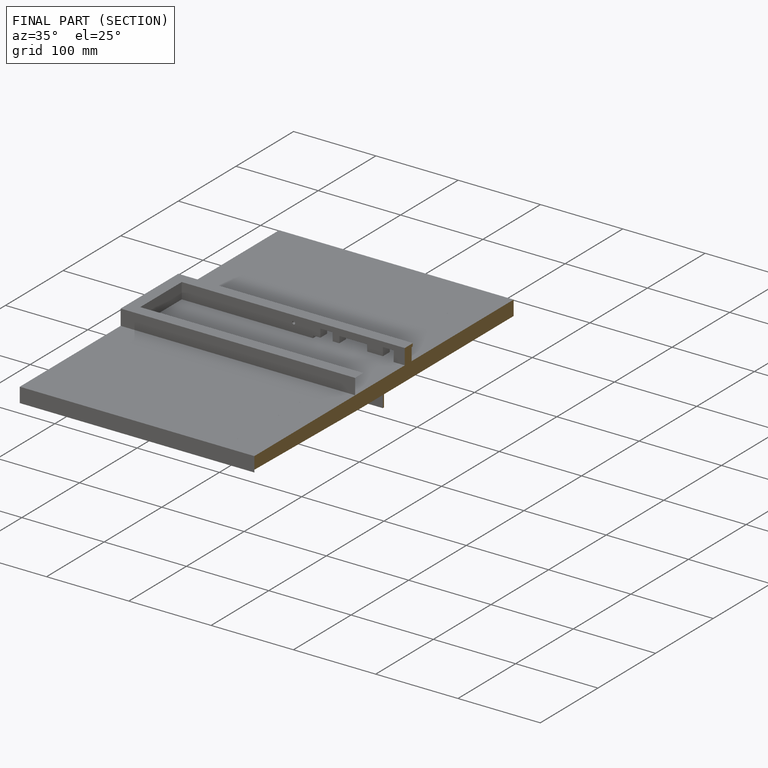
[diagram: finished part — half-section view (interior)]
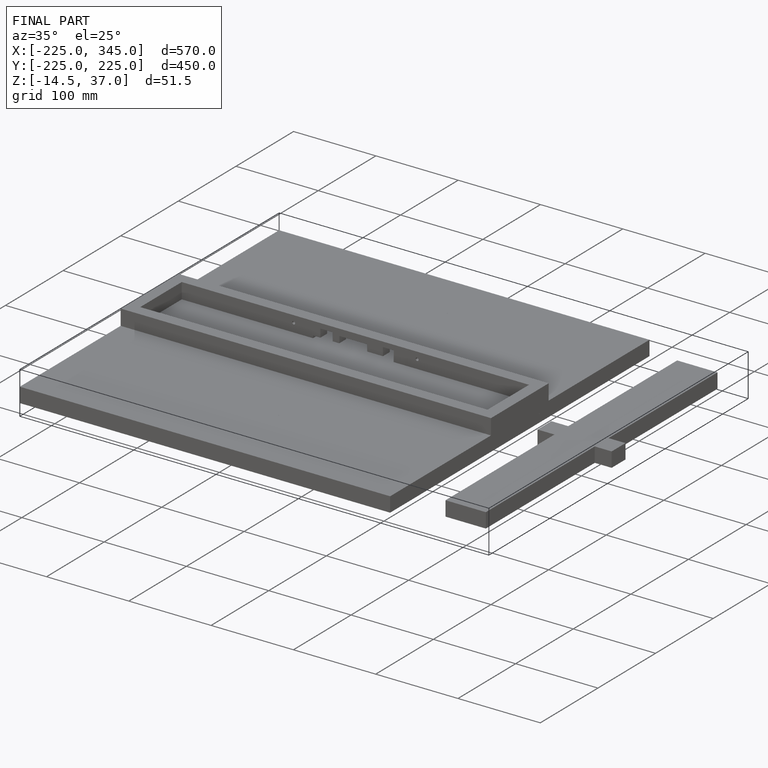
[diagram: finished part — iso view with bounding-box wireframe]
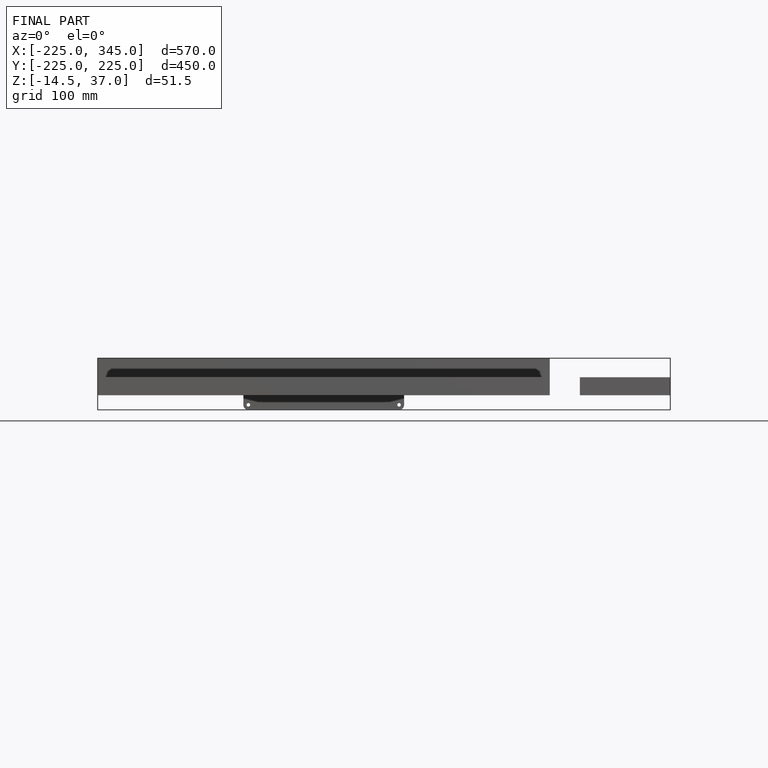
[diagram: finished part — front view with bounding-box wireframe]
